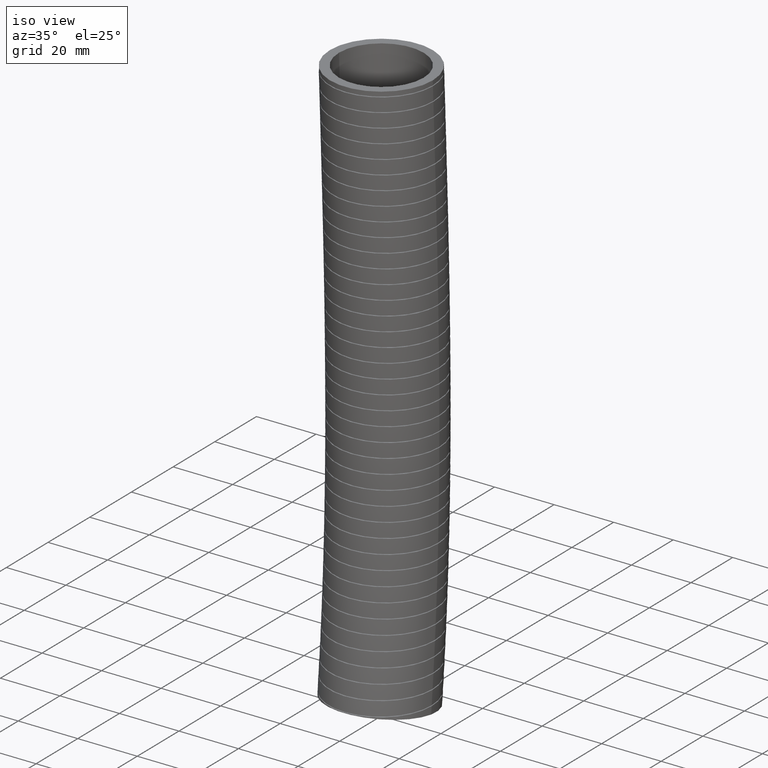
[diagram: clean part render]
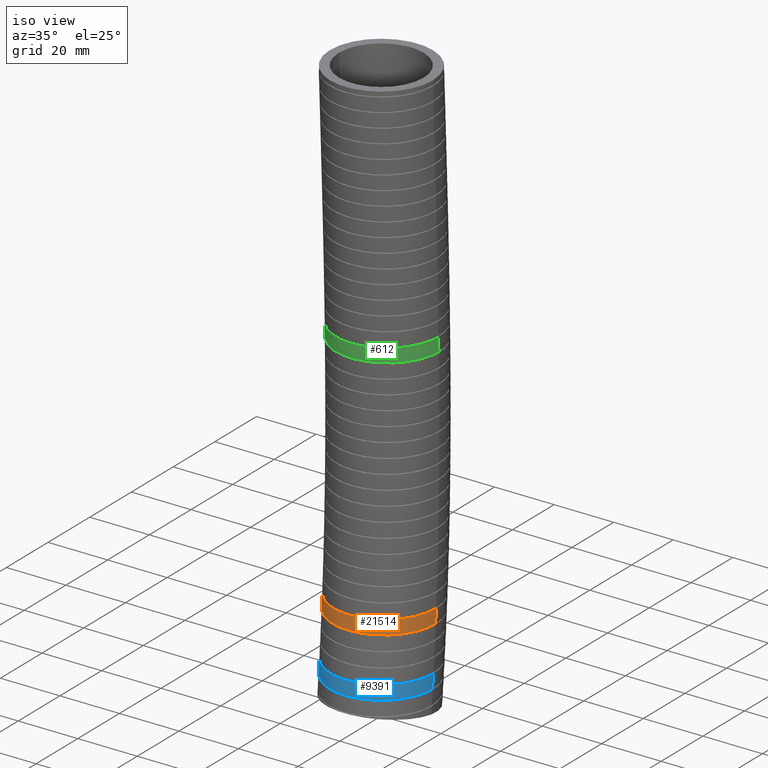
[diagram: same view with three faces highlighted in distinct colors, each labeled with its STEP entity id]
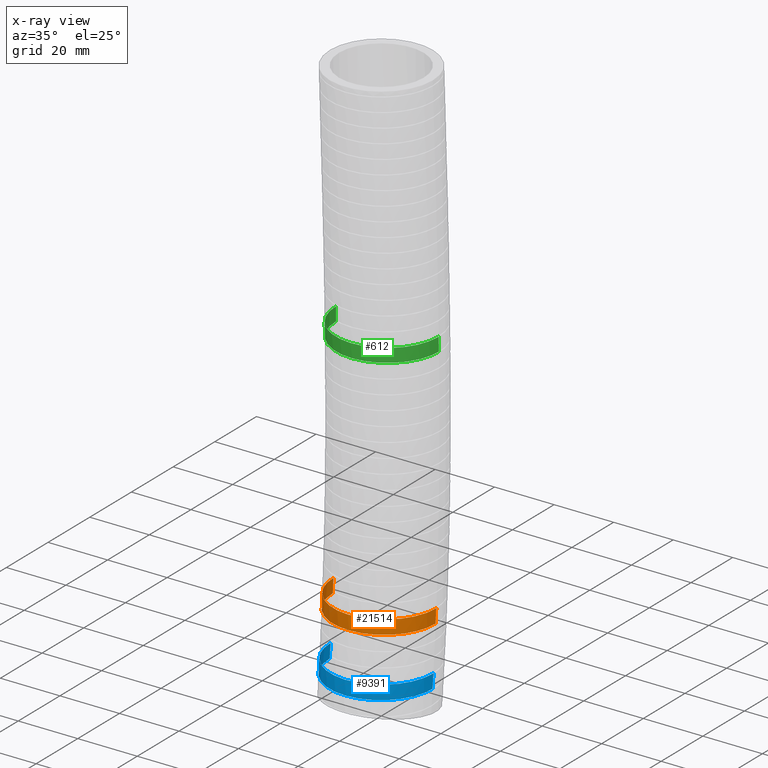
[diagram: x-ray of the same camera — body ghosted, the three highlighted faces saturated]
A machine part, iso view with three faces highlighted in distinct colors.
The next image is the same camera in x-ray (body ghosted, the three faces saturated) — at least one of them is partly hidden behind the body in this view.
Their STEP definitions:

[orange] entity #21514 — the highlighted face is a freeform B-spline surface patch.
#14010 = FACE_OUTER_BOUND ( 'NONE', #21511, .T. ) ;
#14035 = CARTESIAN_POINT ( 'NONE',  ( -0.6800000000000000500, -1.297703424955836600, -1.403800845789877400 ) ) ;
#14037 = CARTESIAN_POINT ( 'NONE',  ( -0.6800000000000000500, -1.360000000000000100, 0.0000000000000000000 ) ) ;
#14039 = CARTESIAN_POINT ( 'NONE',  ( 0.6799999999999998300, -1.377559051196987500, -7.386466342222807800 ) ) ;
#14040 = CARTESIAN_POINT ( 'NONE',  ( 0.6799999999999998300, -1.360997193634168900, -7.204345745797499300 ) ) ;
#14041 = CARTESIAN_POINT ( 'NONE',  ( 0.6800000000000000500, -1.264559801960247100, -6.143882858543539900 ) ) ;
#14042 = CARTESIAN_POINT ( 'NONE',  ( 0.6799999999999998300, -1.194865599480906100, -3.721164621865159700 ) ) ;
#14043 = CARTESIAN_POINT ( 'NONE',  ( 0.6800000000000000500, -1.297703424955836600, -1.403800845789877400 ) ) ;
#14044 = CARTESIAN_POINT ( 'NONE',  ( 0.6800000000000000500, -1.360000000000000100, 0.0000000000000000000 ) ) ;
#14045 = CARTESIAN_POINT ( 'NONE',  ( 0.6799999999999998300, -0.03000000000000002700, -7.570000000000000300 ) ) ;
#14046 = CARTESIAN_POINT ( 'NONE',  ( 0.6799999999999998300, -0.01268304244353373300, -7.380027536167250300 ) ) ;
#14048 = CARTESIAN_POINT ( 'NONE',  ( 0.6799999999999998300, 0.08815119140610085100, -6.273844317744462300 ) ) ;
#14049 = CARTESIAN_POINT ( 'NONE',  ( 0.6799999999999998300, 0.1669887239008314700, -3.753425867331408000 ) ) ;
#14050 = CARTESIAN_POINT ( 'NONE',  ( 0.6799999999999999400, 0.06299611430032937800, -1.415971326882179200 ) ) ;
#14051 = CARTESIAN_POINT ( 'NONE',  ( 0.6799999999999999400, 0.0000000000000000000, 0.0000000000000000000 ) ) ;
#14058 =( BOUNDED_SURFACE ( )  B_SPLINE_SURFACE ( 3, 3, ( 
 ( #14051, #14050, #14049, #14048, #14046, #14045 ),
 ( #14044, #14043, #14042, #14041, #14040, #14039 ),
 ( #14037, #14035, #14133, #14131, #14129, #14127 ),
 ( #14124, #14123, #14121, #14119, #14117, #14115 ),
 ( #14112, #14111, #14109, #14107, #14105, #14103 ),
 ( #14100, #14099, #14097, #14095, #14093, #14091 ),
 ( #14088, #14087, #14085, #14083, #14081, #14079 ) ),
 .UNSPECIFIED., .F., .F., .F. ) 
 B_SPLINE_SURFACE_WITH_KNOTS ( ( 4, 3, 4 ),
 ( 4, 1, 1, 4 ),
 ( 0.0000000000000000000, 0.5000000000000000000, 1.000000000000000000 ),
 ( 0.0000000000000000000, 0.5599999999999998300, 0.9244357691435686200, 1.000000000000000000 ),
 .UNSPECIFIED. ) 
 GEOMETRIC_REPRESENTATION_ITEM ( )  RATIONAL_B_SPLINE_SURFACE ( (
 ( 1.000000000000000000, 1.000000000000000000, 0.9999999999999998900, 1.000000000000000000, 1.000000000000000000, 1.000000000000000000),
 ( 0.3333333333333333100, 0.3333333333333333100, 0.3333333333333333100, 0.3333333333333333100, 0.3333333333333333100, 0.3333333333333333100),
 ( 0.3333333333333333100, 0.3333333333333333100, 0.3333333333333333100, 0.3333333333333333100, 0.3333333333333333100, 0.3333333333333333100),
 ( 1.000000000000000000, 1.000000000000000000, 0.9999999999999998900, 1.000000000000000000, 1.000000000000000000, 1.000000000000000000),
 ( 0.3333333333333333100, 0.3333333333333333100, 0.3333333333333333100, 0.3333333333333333100, 0.3333333333333333100, 0.3333333333333333100),
 ( 0.3333333333333333100, 0.3333333333333333100, 0.3333333333333333100, 0.3333333333333333100, 0.3333333333333333100, 0.3333333333333333100),
 ( 1.000000000000000000, 1.000000000000000000, 0.9999999999999998900, 1.000000000000000000, 1.000000000000000000, 1.000000000000000000) ) ) 
 REPRESENTATION_ITEM ( '' )  SURFACE ( )  );
#14079 = CARTESIAN_POINT ( 'NONE',  ( 0.6799999999999998300, -0.03000000000000002700, -7.570000000000000300 ) ) ;
#14081 = CARTESIAN_POINT ( 'NONE',  ( 0.6799999999999998300, -0.01268304244353373300, -7.380027536167250300 ) ) ;
#14083 = CARTESIAN_POINT ( 'NONE',  ( 0.6799999999999998300, 0.08815119140610085100, -6.273844317744462300 ) ) ;
#14085 = CARTESIAN_POINT ( 'NONE',  ( 0.6799999999999998300, 0.1669887239008314700, -3.753425867331408000 ) ) ;
#14087 = CARTESIAN_POINT ( 'NONE',  ( 0.6799999999999999400, 0.06299611430032937800, -1.415971326882179200 ) ) ;
#14088 = CARTESIAN_POINT ( 'NONE',  ( 0.6799999999999999400, 0.0000000000000000000, 0.0000000000000000000 ) ) ;
#14091 = CARTESIAN_POINT ( 'NONE',  ( 0.6799999999999998300, 1.317559051196987700, -7.753533657777190100 ) ) ;
#14093 = CARTESIAN_POINT ( 'NONE',  ( 0.6799999999999998300, 1.335631108747101300, -7.555709326537000300 ) ) ;
#14095 = CARTESIAN_POINT ( 'NONE',  ( 0.6800000000000000500, 1.440862184772448300, -6.403805776945382000 ) ) ;
#14097 = CARTESIAN_POINT ( 'NONE',  ( 0.6799999999999998300, 1.528843047282568500, -3.785687112797655500 ) ) ;
#14099 = CARTESIAN_POINT ( 'NONE',  ( 0.6800000000000000500, 1.423695653556495700, -1.428141807974481600 ) ) ;
#14100 = CARTESIAN_POINT ( 'NONE',  ( 0.6800000000000000500, 1.360000000000000100, 0.0000000000000000000 ) ) ;
#14103 = CARTESIAN_POINT ( 'NONE',  ( -0.6799999999999997200, 1.317559051196987700, -7.753533657777190100 ) ) ;
#14105 = CARTESIAN_POINT ( 'NONE',  ( -0.6799999999999998300, 1.335631108747101300, -7.555709326537000300 ) ) ;
#14107 = CARTESIAN_POINT ( 'NONE',  ( -0.6799999999999998300, 1.440862184772448300, -6.403805776945382000 ) ) ;
#14109 = CARTESIAN_POINT ( 'NONE',  ( -0.6799999999999993800, 1.528843047282568500, -3.785687112797655500 ) ) ;
#14111 = CARTESIAN_POINT ( 'NONE',  ( -0.6799999999999997200, 1.423695653556495700, -1.428141807974481600 ) ) ;
#14112 = CARTESIAN_POINT ( 'NONE',  ( -0.6799999999999998300, 1.360000000000000100, 0.0000000000000000000 ) ) ;
#14115 = CARTESIAN_POINT ( 'NONE',  ( -0.6799999999999998300, -0.02999999999999994300, -7.570000000000000300 ) ) ;
#14117 = CARTESIAN_POINT ( 'NONE',  ( -0.6799999999999998300, -0.01268304244353365600, -7.380027536167250300 ) ) ;
#14119 = CARTESIAN_POINT ( 'NONE',  ( -0.6799999999999998300, 0.08815119140610093400, -6.273844317744462300 ) ) ;
#14121 = CARTESIAN_POINT ( 'NONE',  ( -0.6799999999999998300, 0.1669887239008315800, -3.753425867331408000 ) ) ;
#14123 = CARTESIAN_POINT ( 'NONE',  ( -0.6799999999999999400, 0.06299611430032946200, -1.415971326882179200 ) ) ;
#14124 = CARTESIAN_POINT ( 'NONE',  ( -0.6799999999999999400, 8.327598234202001900E-017, 0.0000000000000000000 ) ) ;
#14127 = CARTESIAN_POINT ( 'NONE',  ( -0.6800000000000000500, -1.377559051196987500, -7.386466342222807800 ) ) ;
#14129 = CARTESIAN_POINT ( 'NONE',  ( -0.6800000000000000500, -1.360997193634168900, -7.204345745797499300 ) ) ;
#14131 = CARTESIAN_POINT ( 'NONE',  ( -0.6800000000000000500, -1.264559801960247100, -6.143882858543539900 ) ) ;
#14133 = CARTESIAN_POINT ( 'NONE',  ( -0.6799999999999998300, -1.194865599480906100, -3.721164621865159700 ) ) ;
#14535 = CARTESIAN_POINT ( 'NONE',  ( 0.3593828745027424800, -0.5118289622279645900, -6.336775358639008500 ) ) ;
#14537 = CARTESIAN_POINT ( 'NONE',  ( 0.4151414126405546500, -0.4745413704972155600, -6.336775358639009400 ) ) ;
#14539 = CARTESIAN_POINT ( 'NONE',  ( 0.4493812567447640300, -0.4463886494749667000, -6.336775358639008500 ) ) ;
#14540 = CARTESIAN_POINT ( 'NONE',  ( 0.4964451395685687800, -0.3993336611271129900, -6.336775358639007600 ) ) ;
#14542 = CARTESIAN_POINT ( 'NONE',  ( 0.5114119979964052400, -0.3828385933066594800, -6.336775358639008500 ) ) ;
#14544 = CARTESIAN_POINT ( 'NONE',  ( 0.5398570628225999300, -0.3481761366511001400, -6.336775358639008500 ) ) ;
#14546 = CARTESIAN_POINT ( 'NONE',  ( 0.5531985452877127300, -0.3301625117458039100, -6.336775358639007600 ) ) ;
#14548 = CARTESIAN_POINT ( 'NONE',  ( 0.5902140567528626500, -0.2747149377939773800, -6.336775358639006800 ) ) ;
#14550 = CARTESIAN_POINT ( 'NONE',  ( 0.6111038794638911100, -0.2356510695490511600, -6.336775358639008500 ) ) ;
#14552 = CARTESIAN_POINT ( 'NONE',  ( 0.6367066235519022200, -0.1738786572809524800, -6.336775358639006800 ) ) ;
#14554 = CARTESIAN_POINT ( 'NONE',  ( 0.6443053869368219300, -0.1526428477490695500, -6.336775358639006800 ) ) ;
#14556 = CARTESIAN_POINT ( 'NONE',  ( 0.6572512863579549300, -0.1099161719420679900, -6.336775358639007600 ) ) ;
#14558 = CARTESIAN_POINT ( 'NONE',  ( 0.6626349666413253700, -0.08836732612012925000, -6.336775358639004100 ) ) ;
#14560 = CARTESIAN_POINT ( 'NONE',  ( 0.6755910679375056700, -0.02317667480021342100, -6.336775358639002300 ) ) ;
#14562 = CARTESIAN_POINT ( 'NONE',  ( 0.6799999999999997200, 0.02100388836003023300, -6.336775358640154300 ) ) ;
#14564 = CARTESIAN_POINT ( 'NONE',  ( 0.6799999999999998300, 0.06593531424443289900, -6.336775358640157000 ) ) ;
#14568 = CARTESIAN_POINT ( 'NONE',  ( 0.6799999999999998300, 0.06593531424443289900, -6.336775358640157000 ) ) ;
#14572 = B_SPLINE_CURVE_WITH_KNOTS ( 'NONE', 3,
 ( #14564, #14562, #14560, #14558, #14556, #14554, #14552, #14550, #14548, #14546, #14544, #14542, #14540, #14539, #14537, #14535, #14676, #14674, #14672, #14670, #14668, #14666, #14664, #14662, #14660, #14658, #14656, #14654, #14652, #14650, #14648, #14646, #14644, #14642, #14640, #14638, #14636, #14634, #14632, #14630, #14628, #14626, #14624, #14622, #14621, #14619, #14617, #14615, #14614 ),
 .UNSPECIFIED., .F., .F.,
 ( 4, 2, 2, 2, 2, 2, 2, 2, 2, 1, 2, 2, 2, 2, 2, 2, 2, 2, 2, 2, 2, 2, 2, 2, 4 ),
 ( 0.0000000000000000000, 0.003375178080110538800, 0.005062767120165808000, 0.006750356160221077600, 0.01012553424033160900, 0.01181312328038687500, 0.01350071232044214000, 0.01687589040055266500, 0.01856347944060792600, 0.02025106848066318300, 0.02193865752071844400, 0.02362624656077370500, 0.02700142464088422700, 0.02868901368093949200, 0.03037660272099475300, 0.03375178080110527400, 0.03543936984116054200, 0.03712695888121580300, 0.04050213696132633200, 0.04387731504143686100, 0.04556490408149212900, 0.04725249312154739000, 0.05062767120165791900, 0.05231526024171318000, 0.05400284928176844100 ),
 .UNSPECIFIED. ) ;
#14575 = CARTESIAN_POINT ( 'NONE',  ( -0.6799999999999998300, 0.05497374082907955500, -6.516422371260217600 ) ) ;
#14598 = CARTESIAN_POINT ( 'NONE',  ( -0.6799999999999999400, 0.03269607072539288500, -6.516422371260216700 ) ) ;
#14599 = CARTESIAN_POINT ( 'NONE',  ( -0.6799999999999998300, 0.05497374082907955500, -6.516422371260217600 ) ) ;
#14600 = B_SPLINE_CURVE_WITH_KNOTS ( 'NONE', 3,
 ( #14599, #14598, #14737, #14736, #14735, #14733, #14732, #14730, #14729, #14728, #14726, #14725, #14724, #14722, #14721, #14720, #14719, #14717, #14716, #14715, #14713, #14712, #14711, #14710, #14709, #14708, #14707, #14705, #14704, #14703, #14702, #14701, #14700, #14699, #14698, #14697, #14696, #14695, #14694, #14693, #14692, #14691, #14690, #14689, #14688, #14686, #14685, #14684, #14683, #14682, #14680 ),
 .UNSPECIFIED., .F., .F.,
 ( 4, 2, 2, 2, 2, 2, 2, 2, 2, 2, 2, 2, 1, 2, 2, 2, 2, 2, 2, 2, 2, 2, 2, 2, 2, 4 ),
 ( 0.05458921518559874100, 0.05629531114721460200, 0.05800140710883046300, 0.06141359903206218600, 0.06482579095529390800, 0.06653188691690976900, 0.06823798287852563000, 0.07165017480175733800, 0.07335627076337319900, 0.07506236672498906000, 0.07847455864822076900, 0.08018065460983663000, 0.08188675057145249100, 0.08359284653306833800, 0.08529894249468419900, 0.08871113441791592100, 0.09041723037953176800, 0.09212332634114761600, 0.09553551826437933800, 0.09724161422599518500, 0.09894771018761103200, 0.1023599021108427300, 0.1040659980724585900, 0.1057720940340744300, 0.1074781899956902800, 0.1091842859573061300 ),
 .UNSPECIFIED. ) ;
#14613 = CARTESIAN_POINT ( 'NONE',  ( 0.6799999999999998300, 0.05497374082897333500, -6.516422371261044500 ) ) ;
#14614 = CARTESIAN_POINT ( 'NONE',  ( -0.6799999999999998300, 0.06593531424456661200, -6.336775358639005900 ) ) ;
#14615 = CARTESIAN_POINT ( 'NONE',  ( -0.6799999999999999400, 0.04374388814861809900, -6.336775358639012100 ) ) ;
#14617 = CARTESIAN_POINT ( 'NONE',  ( -0.6789166339267414000, 0.02148366318950129300, -6.336775358639009400 ) ) ;
#14619 = CARTESIAN_POINT ( 'NONE',  ( -0.6745096361374454100, -0.02317905417943273700, -6.336775358639011200 ) ) ;
#14621 = CARTESIAN_POINT ( 'NONE',  ( -0.6712084960826585300, -0.04530456287643606900, -6.336775358639009400 ) ) ;
#14622 = CARTESIAN_POINT ( 'NONE',  ( -0.6581744878885657000, -0.1106559440084088400, -6.336775358639009400 ) ) ;
#14624 = CARTESIAN_POINT ( 'NONE',  ( -0.6453223392621081400, -0.1530537100991528300, -6.336775358639009400 ) ) ;
#14626 = CARTESIAN_POINT ( 'NONE',  ( -0.6197230477916446700, -0.2148740300007926900, -6.336775358639012100 ) ) ;
#14628 = CARTESIAN_POINT ( 'NONE',  ( -0.6100748198283811900, -0.2352649877368947500, -6.336775358639007600 ) ) ;
#14630 = CARTESIAN_POINT ( 'NONE',  ( -0.5890262513716055800, -0.2746021988913565600, -6.336775358639006800 ) ) ;
#14632 = CARTESIAN_POINT ( 'NONE',  ( -0.5775989409399584500, -0.2936379241985073200, -6.336775358639007600 ) ) ;
#14634 = CARTESIAN_POINT ( 'NONE',  ( -0.5406639640363754000, -0.3488857296883358700, -6.336775358639007600 ) ) ;
#14636 = CARTESIAN_POINT ( 'NONE',  ( -0.5124713328632456400, -0.3833147893493522000, -6.336775358639008500 ) ) ;
#14638 = CARTESIAN_POINT ( 'NONE',  ( -0.4489779420395503300, -0.4467875907862386400, -6.336775358639011200 ) ) ;
#14640 = CARTESIAN_POINT ( 'NONE',  ( -0.4146317978365942100, -0.4748995765401431400, -6.336775358639006800 ) ) ;
#14642 = CARTESIAN_POINT ( 'NONE',  ( -0.3593600789743549000, -0.5118354357803429600, -6.336775358639005900 ) ) ;
#14644 = CARTESIAN_POINT ( 'NONE',  ( -0.3403061409360514400, -0.5232689347381855900, -6.336775358639008500 ) ) ;
#14646 = CARTESIAN_POINT ( 'NONE',  ( -0.3009072356493418000, -0.5443358488804331800, -6.336775358639007600 ) ) ;
#14648 = CARTESIAN_POINT ( 'NONE',  ( -0.2805254079929700400, -0.5539692372320881300, -6.336775358639007600 ) ) ;
#14650 = CARTESIAN_POINT ( 'NONE',  ( -0.2187758154602673100, -0.5795179106724976900, -6.336775358639008500 ) ) ;
#14652 = CARTESIAN_POINT ( 'NONE',  ( -0.1763837332138263300, -0.5923642875849820500, -6.336775358639006800 ) ) ;
#14654 = CARTESIAN_POINT ( 'NONE',  ( -0.1109673201930231300, -0.6053897214574993600, -6.336775358639006800 ) ) ;
#14656 = CARTESIAN_POINT ( 'NONE',  ( -0.08875412979165224500, -0.6086922338066957900, -6.336775358639005900 ) ) ;
#14658 = CARTESIAN_POINT ( 'NONE',  ( -0.04416892711263967900, -0.6130715050073327600, -6.336775358639004100 ) ) ;
#14660 = CARTESIAN_POINT ( 'NONE',  ( -0.02193497367745718800, -0.6141458999139258700, -6.336775358639003200 ) ) ;
#14662 = CARTESIAN_POINT ( 'NONE',  ( 0.04459614121694113100, -0.6141222127637451200, -6.336775358639005900 ) ) ;
#14664 = CARTESIAN_POINT ( 'NONE',  ( 0.08872418464411148400, -0.6098082048600967900, -6.336775358639012100 ) ) ;
#14666 = CARTESIAN_POINT ( 'NONE',  ( 0.1545679182976904000, -0.5967133680975751400, -6.336775358639011200 ) ) ;
#14668 = CARTESIAN_POINT ( 'NONE',  ( 0.1763869843950809900, -0.5912362498496126500, -6.336775358639015600 ) ) ;
#14670 = CARTESIAN_POINT ( 'NONE',  ( 0.2189590363785893200, -0.5783002900859362000, -6.336775358639013900 ) ) ;
#14672 = CARTESIAN_POINT ( 'NONE',  ( 0.2606992164601534800, -0.5633402858806159100, -6.336775358639001400 ) ) ;
#14674 = CARTESIAN_POINT ( 'NONE',  ( 0.3007980874613422900, -0.5443867791740638600, -6.336775358639011200 ) ) ;
#14676 = CARTESIAN_POINT ( 'NONE',  ( 0.3400637274246218800, -0.5234059210845045700, -6.336775358639009400 ) ) ;
#14680 = CARTESIAN_POINT ( 'NONE',  ( 0.6799999999999998300, 0.05497374082897333500, -6.516422371261044500 ) ) ;
#14682 = CARTESIAN_POINT ( 'NONE',  ( 0.6799999999999997200, 0.03250646232426177000, -6.516422371261044500 ) ) ;
#14683 = CARTESIAN_POINT ( 'NONE',  ( 0.6788800294502846900, 0.01002464322386516100, -6.516422371260218500 ) ) ;
#14684 = CARTESIAN_POINT ( 'NONE',  ( 0.6744824209561513000, -0.03434556442820003300, -6.516422371260220300 ) ) ;
#14685 = CARTESIAN_POINT ( 'NONE',  ( 0.6712087292476669500, -0.05629819574377235800, -6.516422371260216700 ) ) ;
#14686 = CARTESIAN_POINT ( 'NONE',  ( 0.6625524475493901300, -0.09974735399621856300, -6.516422371260216700 ) ) ;
#14688 = CARTESIAN_POINT ( 'NONE',  ( 0.6571698088387498700, -0.1212438703959354500, -6.516422371260215800 ) ) ;
#14689 = CARTESIAN_POINT ( 'NONE',  ( 0.6442752302523738800, -0.1637763861597323100, -6.516422371260216700 ) ) ;
#14690 = CARTESIAN_POINT ( 'NONE',  ( 0.6367358208113647100, -0.1848780842087861800, -6.516422371260212300 ) ) ;
#14691 = CARTESIAN_POINT ( 'NONE',  ( 0.6109807435423036900, -0.2470308596406400300, -6.516422371260214100 ) ) ;
#14692 = CARTESIAN_POINT ( 'NONE',  ( 0.5900213921577859300, -0.2861417007495069600, -6.516422371260217600 ) ) ;
#14693 = CARTESIAN_POINT ( 'NONE',  ( 0.5530930529798909800, -0.3414408386928818900, -6.516422371260217600 ) ) ;
#14694 = CARTESIAN_POINT ( 'NONE',  ( 0.5398620269728324800, -0.3593085911504507700, -6.516422371260217600 ) ) ;
#14695 = CARTESIAN_POINT ( 'NONE',  ( 0.5115082397052258500, -0.3938837126648079300, -6.516422371260220300 ) ) ;
#14696 = CARTESIAN_POINT ( 'NONE',  ( 0.4963777830496172200, -0.4105749750139413000, -6.516422371260216700 ) ) ;
#14697 = CARTESIAN_POINT ( 'NONE',  ( 0.4491420971775779100, -0.4577987725729306100, -6.516422371260214100 ) ) ;
#14698 = CARTESIAN_POINT ( 'NONE',  ( 0.4149028784990603800, -0.4859057394131939800, -6.516422371260214100 ) ) ;
#14699 = CARTESIAN_POINT ( 'NONE',  ( 0.3594292114521852000, -0.5230130388614984100, -6.516422371260213200 ) ) ;
#14700 = CARTESIAN_POINT ( 'NONE',  ( 0.3401432308424393000, -0.5345873233213860300, -6.516422371260212300 ) ) ;
#14701 = CARTESIAN_POINT ( 'NONE',  ( 0.3006636889340112400, -0.5556899375565511600, -6.516422371260213200 ) ) ;
#14702 = CARTESIAN_POINT ( 'NONE',  ( 0.2805458845845851300, -0.5651931581934971400, -6.516422371260212300 ) ) ;
#14703 = CARTESIAN_POINT ( 'NONE',  ( 0.2190898335563085700, -0.5906457887031173500, -6.516422371260214100 ) ) ;
#14704 = CARTESIAN_POINT ( 'NONE',  ( 0.1766595369665330800, -0.6035675222849745700, -6.516422371260218500 ) ) ;
#14705 = CARTESIAN_POINT ( 'NONE',  ( 0.1107564958457855800, -0.6166910034271735300, -6.516422371260217600 ) ) ;
#14707 = CARTESIAN_POINT ( 'NONE',  ( 0.08853408759446521100, -0.6199782640444800900, -6.516422371260213200 ) ) ;
#14708 = CARTESIAN_POINT ( 'NONE',  ( 0.04427343427639022400, -0.6243238806310160700, -6.516422371260213200 ) ) ;
#14709 = CARTESIAN_POINT ( 'NONE',  ( -6.430957754584827700E-006, -0.6264833661366462400, -6.516422371260222100 ) ) ;
#14710 = CARTESIAN_POINT ( 'NONE',  ( -0.04432426970281813600, -0.6243218317004836100, -6.516422371260216700 ) ) ;
#14711 = CARTESIAN_POINT ( 'NONE',  ( -0.08866142017921731200, -0.6199628081674589700, -6.516422371260215800 ) ) ;
#14712 = CARTESIAN_POINT ( 'NONE',  ( -0.1109614275518566000, -0.6166552545358096000, -6.516422371260222100 ) ) ;
#14713 = CARTESIAN_POINT ( 'NONE',  ( -0.1766953024326261800, -0.6035502289521999000, -6.516422371260218500 ) ) ;
#14715 = CARTESIAN_POINT ( 'NONE',  ( -0.2190964909419423300, -0.5906464150740669000, -6.516422371260222100 ) ) ;
#14716 = CARTESIAN_POINT ( 'NONE',  ( -0.2806089381947196000, -0.5651653493815856900, -6.516422371260221200 ) ) ;
#14717 = CARTESIAN_POINT ( 'NONE',  ( -0.3007623892300995100, -0.5556435126406668000, -6.516422371260209600 ) ) ;
#14719 = CARTESIAN_POINT ( 'NONE',  ( -0.3403440400654096900, -0.5344736062419358500, -6.516422371260209600 ) ) ;
#14720 = CARTESIAN_POINT ( 'NONE',  ( -0.3595180028761502700, -0.5229564630420678900, -6.516422371260213200 ) ) ;
#14721 = CARTESIAN_POINT ( 'NONE',  ( -0.4149043908986240200, -0.4858990774387768600, -6.516422371260213200 ) ) ;
#14722 = CARTESIAN_POINT ( 'NONE',  ( -0.4491555774133810800, -0.4577942538738737900, -6.516422371260213200 ) ) ;
#14724 = CARTESIAN_POINT ( 'NONE',  ( -0.4964736143648250100, -0.4104746741669065800, -6.516422371260215800 ) ) ;
#14725 = CARTESIAN_POINT ( 'NONE',  ( -0.5116193506537138900, -0.3937544624842186900, -6.516422371260212300 ) ) ;
#14726 = CARTESIAN_POINT ( 'NONE',  ( -0.5399043711208441100, -0.3592506814630128100, -6.516422371260214100 ) ) ;
#14728 = CARTESIAN_POINT ( 'NONE',  ( -0.5531170177854832800, -0.3414067036604743200, -6.516422371260221200 ) ) ;
#14729 = CARTESIAN_POINT ( 'NONE',  ( -0.5900232719503335500, -0.2861353791002187500, -6.516422371260217600 ) ) ;
#14730 = CARTESIAN_POINT ( 'NONE',  ( -0.6110439775103075900, -0.2469087011502260300, -6.516422371260214100 ) ) ;
#14732 = CARTESIAN_POINT ( 'NONE',  ( -0.6453930980520219400, -0.1639555738550206600, -6.516422371260213200 ) ) ;
#14733 = CARTESIAN_POINT ( 'NONE',  ( -0.6582274685433290300, -0.1214646179850903100, -6.516422371260216700 ) ) ;
#14735 = CARTESIAN_POINT ( 'NONE',  ( -0.6712146739197766300, -0.05626407578715222900, -6.516422371260217600 ) ) ;
#14736 = CARTESIAN_POINT ( 'NONE',  ( -0.6744919826390618500, -0.03428474369161097600, -6.516422371260206100 ) ) ;
#14737 = CARTESIAN_POINT ( 'NONE',  ( -0.6788916366250092900, 0.01017758008045285600, -6.516422371260207000 ) ) ;
#14778 = CARTESIAN_POINT ( 'NONE',  ( -0.6799999999999998300, 0.05497374082907955500, -6.516422371260217600 ) ) ;
#14780 = CARTESIAN_POINT ( 'NONE',  ( -0.6799999999999998300, 0.05880588885966413200, -6.456547583309610000 ) ) ;
#14782 = CARTESIAN_POINT ( 'NONE',  ( -0.6799999999999998300, 0.06245808817005598500, -6.396665175541266500 ) ) ;
#14783 = CARTESIAN_POINT ( 'NONE',  ( -0.6799999999999998300, 0.06593531424456661200, -6.336775358639005900 ) ) ;
#14789 = CARTESIAN_POINT ( 'NONE',  ( -0.6799999999999998300, 0.06593531424456661200, -6.336775358639005900 ) ) ;
#14792 = B_SPLINE_CURVE_WITH_KNOTS ( 'NONE', 3,
 ( #14783, #14782, #14780, #14778 ),
 .UNSPECIFIED., .F., .F.,
 ( 4, 4 ),
 ( 0.8365813253279658100, 0.8603700907279985300 ),
 .UNSPECIFIED. ) ;
#14796 = CARTESIAN_POINT ( 'NONE',  ( 0.6799999999999998300, 0.05497374082897333500, -6.516422371261044500 ) ) ;
#14798 = CARTESIAN_POINT ( 'NONE',  ( 0.6799999999999998300, 0.05880588885960556100, -6.456547583310552300 ) ) ;
#14800 = CARTESIAN_POINT ( 'NONE',  ( 0.6799999999999998300, 0.06245808816999279300, -6.396665175542315400 ) ) ;
#14801 = CARTESIAN_POINT ( 'NONE',  ( 0.6799999999999998300, 0.06593531424443289900, -6.336775358640157000 ) ) ;
#14802 = B_SPLINE_CURVE_WITH_KNOTS ( 'NONE', 3,
 ( #14801, #14800, #14798, #14796 ),
 .UNSPECIFIED., .F., .F.,
 ( 4, 4 ),
 ( 0.8365813253281189100, 0.8603700907281087700 ),
 .UNSPECIFIED. ) ;
#21507 = ORIENTED_EDGE ( 'NONE', *, *, #21531, .T. ) ;
#21511 = EDGE_LOOP ( 'NONE', ( #21507, #21537, #21536, #21539 ) ) ;
#21514 = ADVANCED_FACE ( 'NONE', ( #14010 ), #14058, .T. ) ;
#21531 = EDGE_CURVE ( 'NONE', #21534, #21542, #14572, .T. ) ;
#21532 = VERTEX_POINT ( 'NONE', #14575 ) ;
#21534 = VERTEX_POINT ( 'NONE', #14568 ) ;
#21535 = VERTEX_POINT ( 'NONE', #14613 ) ;
#21536 = ORIENTED_EDGE ( 'NONE', *, *, #21538, .T. ) ;
#21537 = ORIENTED_EDGE ( 'NONE', *, *, #21541, .T. ) ;
#21538 = EDGE_CURVE ( 'NONE', #21532, #21535, #14600, .T. ) ;
#21539 = ORIENTED_EDGE ( 'NONE', *, *, #21540, .F. ) ;
#21540 = EDGE_CURVE ( 'NONE', #21534, #21535, #14802, .T. ) ;
#21541 = EDGE_CURVE ( 'NONE', #21542, #21532, #14792, .T. ) ;
#21542 = VERTEX_POINT ( 'NONE', #14789 ) ;

[blue] entity #9391 — the highlighted face is a freeform B-spline surface patch.
#7140 = CARTESIAN_POINT ( 'NONE',  ( -0.6799999999999998300, 0.1669887239008315800, -3.753425867331408000 ) ) ;
#7141 = CARTESIAN_POINT ( 'NONE',  ( -0.6799999999999999400, 0.06299611430032946200, -1.415971326882179200 ) ) ;
#7142 = CARTESIAN_POINT ( 'NONE',  ( -0.6799999999999999400, 8.327598234202001900E-017, 0.0000000000000000000 ) ) ;
#7143 = CARTESIAN_POINT ( 'NONE',  ( -0.6800000000000000500, -1.377559051196987500, -7.386466342222807800 ) ) ;
#7144 = CARTESIAN_POINT ( 'NONE',  ( -0.6800000000000000500, -1.360997193634168900, -7.204345745797499300 ) ) ;
#7145 = CARTESIAN_POINT ( 'NONE',  ( -0.6800000000000000500, -1.264559801960247100, -6.143882858543539900 ) ) ;
#7146 = CARTESIAN_POINT ( 'NONE',  ( -0.6799999999999998300, -1.194865599480906100, -3.721164621865159700 ) ) ;
#7148 = CARTESIAN_POINT ( 'NONE',  ( -0.6800000000000000500, -1.297703424955836600, -1.403800845789877400 ) ) ;
#7149 = CARTESIAN_POINT ( 'NONE',  ( -0.6800000000000000500, -1.360000000000000100, 0.0000000000000000000 ) ) ;
#7244 = CARTESIAN_POINT ( 'NONE',  ( -0.6799999999999998300, 0.01217693932701256800, -7.094860042461001500 ) ) ;
#7256 = CARTESIAN_POINT ( 'NONE',  ( -0.6799999999999998300, -0.003306163625375735600, -7.274155360798787700 ) ) ;
#7257 = CARTESIAN_POINT ( 'NONE',  ( -0.6799999999999998300, 0.001975291069657932700, -7.214395353812920900 ) ) ;
#7258 = CARTESIAN_POINT ( 'NONE',  ( -0.6799999999999998300, 0.007156560935453294000, -7.154631104562156500 ) ) ;
#7259 = CARTESIAN_POINT ( 'NONE',  ( -0.6799999999999998300, 0.01217693932701256800, -7.094860042461001500 ) ) ;
#7261 = B_SPLINE_CURVE_WITH_KNOTS ( 'NONE', 3,
 ( #7259, #7258, #7257, #7256 ),
 .UNSPECIFIED., .F., .F.,
 ( 4, 4 ),
 ( 0.9370084684369832700, 0.9607760705588963600 ),
 .UNSPECIFIED. ) ;
#7276 = CARTESIAN_POINT ( 'NONE',  ( -0.5777829348519195600, -0.3479388425228549500, -7.094860042461008700 ) ) ;
#7277 = CARTESIAN_POINT ( 'NONE',  ( -0.5408915199934840600, -0.4033157013201627600, -7.094860042461007800 ) ) ;
#7278 = CARTESIAN_POINT ( 'NONE',  ( -0.5127307024944471900, -0.4378299119638449600, -7.094860042461009500 ) ) ;
#7279 = CARTESIAN_POINT ( 'NONE',  ( -0.4492702895761387900, -0.5014950026973846700, -7.094860042461008700 ) ) ;
#7280 = CARTESIAN_POINT ( 'NONE',  ( -0.4149311338773183400, -0.5297029528160819300, -7.094860042461005100 ) ) ;
#7281 = CARTESIAN_POINT ( 'NONE',  ( -0.3596510354237662500, -0.5667753466507282600, -7.094860042461004200 ) ) ;
#7282 = CARTESIAN_POINT ( 'NONE',  ( -0.3405911474774915800, -0.5782531268840899200, -7.094860042461000700 ) ) ;
#7283 = CARTESIAN_POINT ( 'NONE',  ( -0.3011729329048648000, -0.5994047754163950300, -7.094860042460999800 ) ) ;
#7284 = CARTESIAN_POINT ( 'NONE',  ( -0.2807810855057975000, -0.6090769092265231300, -7.094860042461009500 ) ) ;
#7285 = CARTESIAN_POINT ( 'NONE',  ( -0.2189935884996894700, -0.6347314107025904300, -7.094860042461008700 ) ) ;
#7286 = CARTESIAN_POINT ( 'NONE',  ( -0.1765631060541419100, -0.6476363026268232600, -7.094860042461000700 ) ) ;
#7287 = CARTESIAN_POINT ( 'NONE',  ( -0.1110667810439056600, -0.6607223176297473100, -7.094860042461000700 ) ) ;
#7288 = CARTESIAN_POINT ( 'NONE',  ( -0.08881686189875164000, -0.6640408359881525600, -7.094860042461004200 ) ) ;
#7289 = CARTESIAN_POINT ( 'NONE',  ( -0.04419162795891976700, -0.6684375730822019700, -7.094860042461004200 ) ) ;
#7290 = CARTESIAN_POINT ( 'NONE',  ( -0.02193567730680254900, -0.6695161571702762400, -7.094860042461003300 ) ) ;
#7291 = CARTESIAN_POINT ( 'NONE',  ( 0.04466711236374056700, -0.6694901096636949300, -7.094860042461003300 ) ) ;
#7292 = CARTESIAN_POINT ( 'NONE',  ( 0.08885046945712861400, -0.6651549078451696200, -7.094860042461006000 ) ) ;
#7293 = CARTESIAN_POINT ( 'NONE',  ( 0.1547883676836253900, -0.6519899246382228100, -7.094860042461005100 ) ) ;
#7294 = CARTESIAN_POINT ( 'NONE',  ( 0.1766149550907012400, -0.6464890796293448800, -7.094860042461003300 ) ) ;
#7295 = CARTESIAN_POINT ( 'NONE',  ( 0.2192121435539803600, -0.6334967488464893200, -7.094860042461003300 ) ) ;
#7296 = CARTESIAN_POINT ( 'NONE',  ( 0.2609774342287176600, -0.6184723540496143100, -7.094860042461001500 ) ) ;
#7297 = CARTESIAN_POINT ( 'NONE',  ( 0.3011009520676948800, -0.5994376258384049900, -7.094860042461001500 ) ) ;
#7298 = CARTESIAN_POINT ( 'NONE',  ( 0.3403907536506293200, -0.5783663916703955000, -7.094860042461003300 ) ) ;
#7299 = CARTESIAN_POINT ( 'NONE',  ( 0.3597222373362501400, -0.5667382348014701200, -7.094860042460995300 ) ) ;
#7300 = CARTESIAN_POINT ( 'NONE',  ( 0.4154615855321038300, -0.5293257468731454900, -7.094860042460998900 ) ) ;
#7301 = CARTESIAN_POINT ( 'NONE',  ( 0.4496864247597298100, -0.5010833783086199300, -7.094860042461006000 ) ) ;
#7302 = CARTESIAN_POINT ( 'NONE',  ( 0.4967246441740991700, -0.4538846616164859400, -7.094860042461006000 ) ) ;
#7303 = CARTESIAN_POINT ( 'NONE',  ( 0.5116824170969974700, -0.4373401290593017000, -7.094860042461001500 ) ) ;
#7304 = CARTESIAN_POINT ( 'NONE',  ( 0.5401082112056904100, -0.4025755283142466400, -7.094860042461004200 ) ) ;
#7305 = CARTESIAN_POINT ( 'NONE',  ( 0.5534241575298793900, -0.3845304225803990400, -7.094860042461005100 ) ) ;
#7306 = CARTESIAN_POINT ( 'NONE',  ( 0.5903850463544885200, -0.3289668833452354400, -7.094860042461004200 ) ) ;
#7307 = CARTESIAN_POINT ( 'NONE',  ( 0.6112413692151816800, -0.2898272006428933000, -7.094860042461009500 ) ) ;
#7308 = CARTESIAN_POINT ( 'NONE',  ( 0.6367997573753830800, -0.2279441516248534300, -7.094860042461005100 ) ) ;
#7309 = CARTESIAN_POINT ( 'NONE',  ( 0.6443835641327129200, -0.2066744007433290700, -7.094860042461004200 ) ) ;
#7310 = CARTESIAN_POINT ( 'NONE',  ( 0.6573013689122676500, -0.1638905595414631200, -7.094860042461003300 ) ) ;
#7311 = CARTESIAN_POINT ( 'NONE',  ( 0.6626733287352601900, -0.1423136038140359900, -7.094860042460998900 ) ) ;
#7312 = CARTESIAN_POINT ( 'NONE',  ( 0.6756010618340782000, -0.07704000412231853900, -7.094860042460998900 ) ) ;
#7313 = CARTESIAN_POINT ( 'NONE',  ( 0.6799999999999999400, -0.03280595790538686600, -7.094860042268884100 ) ) ;
#7314 = CARTESIAN_POINT ( 'NONE',  ( 0.6799999999999998300, 0.01217693935928572600, -7.094860042268884100 ) ) ;
#7315 = B_SPLINE_CURVE_WITH_KNOTS ( 'NONE', 3,
 ( #7314, #7313, #7312, #7311, #7310, #7309, #7308, #7307, #7306, #7305, #7304, #7303, #7302, #7301, #7300, #7299, #7298, #7297, #7296, #7295, #7294, #7293, #7292, #7291, #7290, #7289, #7288, #7287, #7286, #7285, #7284, #7283, #7282, #7281, #7280, #7279, #7278, #7277, #7276, #7348, #7347, #7346, #7345, #7344, #7343, #7342, #7341, #7340, #7339 ),
 .UNSPECIFIED., .F., .F.,
 ( 4, 2, 2, 2, 2, 2, 2, 2, 2, 1, 2, 2, 2, 2, 2, 2, 2, 2, 2, 2, 2, 2, 2, 2, 4 ),
 ( 0.0000000000000000000, 0.003379083890527625800, 0.005068625835791438900, 0.006758167781055251500, 0.01013725167158287900, 0.01182679361684669200, 0.01351633556211050100, 0.01689541945263812000, 0.01858496139790193100, 0.02027450334316574200, 0.02196404528842954600, 0.02365358723369335300, 0.02703267112422097100, 0.02872221306948477900, 0.03041175501474858300, 0.03379083890527619800, 0.03548038085054000500, 0.03716992279580381300, 0.04054900668633142800, 0.04392809057685903600, 0.04561763252212285000, 0.04730717446738665100, 0.05068625835791427900, 0.05237580030317808700, 0.05406534224844189400 ),
 .UNSPECIFIED. ) ;
#7339 = CARTESIAN_POINT ( 'NONE',  ( -0.6799999999999998300, 0.01217693932701256800, -7.094860042461001500 ) ) ;
#7340 = CARTESIAN_POINT ( 'NONE',  ( -0.6799999999999998300, -0.01003995125328614000, -7.094860042461006000 ) ) ;
#7341 = CARTESIAN_POINT ( 'NONE',  ( -0.6789191014962815400, -0.03232529662405905100, -7.094860042461005100 ) ) ;
#7342 = CARTESIAN_POINT ( 'NONE',  ( -0.6745225862454095100, -0.07703751514883248900, -7.094860042461003300 ) ) ;
#7343 = CARTESIAN_POINT ( 'NONE',  ( -0.6712283857941562200, -0.09919465075586340900, -7.094860042461006000 ) ) ;
#7344 = CARTESIAN_POINT ( 'NONE',  ( -0.6582216062565325900, -0.1646354406007841100, -7.094860042461008700 ) ) ;
#7345 = CARTESIAN_POINT ( 'NONE',  ( -0.6453951982921217700, -0.2070959651998068600, -7.094860042461005100 ) ) ;
#7346 = CARTESIAN_POINT ( 'NONE',  ( -0.6198446110172762800, -0.2690148088317362900, -7.094860042461003300 ) ) ;
#7347 = CARTESIAN_POINT ( 'NONE',  ( -0.6102134813060597900, -0.2894420230736405300, -7.094860042461004200 ) ) ;
#7348 = CARTESIAN_POINT ( 'NONE',  ( -0.5891952085363348900, -0.3288610094779740300, -7.094860042461001500 ) ) ;
#7365 = FACE_OUTER_BOUND ( 'NONE', #9379, .T. ) ;
#7371 = CARTESIAN_POINT ( 'NONE',  ( 0.6799999999999998300, 0.01217693935928572600, -7.094860042268884100 ) ) ;
#7375 = CARTESIAN_POINT ( 'NONE',  ( 0.6799999999999998300, -1.377559051196987500, -7.386466342222807800 ) ) ;
#7376 = CARTESIAN_POINT ( 'NONE',  ( 0.6799999999999998300, -1.360997193634168900, -7.204345745797499300 ) ) ;
#7377 = CARTESIAN_POINT ( 'NONE',  ( 0.6800000000000000500, -1.264559801960247100, -6.143882858543539900 ) ) ;
#7378 = CARTESIAN_POINT ( 'NONE',  ( 0.6799999999999998300, -1.194865599480906100, -3.721164621865159700 ) ) ;
#7379 = CARTESIAN_POINT ( 'NONE',  ( 0.6800000000000000500, -1.297703424955836600, -1.403800845789877400 ) ) ;
#7380 = CARTESIAN_POINT ( 'NONE',  ( 0.6800000000000000500, -1.360000000000000100, 0.0000000000000000000 ) ) ;
#7381 = CARTESIAN_POINT ( 'NONE',  ( 0.6799999999999998300, -0.03000000000000002700, -7.570000000000000300 ) ) ;
#7382 = CARTESIAN_POINT ( 'NONE',  ( 0.6799999999999998300, -0.01268304244353373300, -7.380027536167250300 ) ) ;
#7383 = CARTESIAN_POINT ( 'NONE',  ( 0.6799999999999998300, 0.08815119140610085100, -6.273844317744462300 ) ) ;
#7384 = CARTESIAN_POINT ( 'NONE',  ( 0.6799999999999998300, 0.1669887239008314700, -3.753425867331408000 ) ) ;
#7385 = CARTESIAN_POINT ( 'NONE',  ( 0.6799999999999999400, 0.06299611430032937800, -1.415971326882179200 ) ) ;
#7386 = CARTESIAN_POINT ( 'NONE',  ( 0.6799999999999999400, 0.0000000000000000000, 0.0000000000000000000 ) ) ;
#7394 =( BOUNDED_SURFACE ( )  B_SPLINE_SURFACE ( 3, 3, ( 
 ( #7386, #7385, #7384, #7383, #7382, #7381 ),
 ( #7380, #7379, #7378, #7377, #7376, #7375 ),
 ( #7149, #7148, #7146, #7145, #7144, #7143 ),
 ( #7142, #7141, #7140, #7419, #7418, #7417 ),
 ( #7416, #7415, #7414, #7413, #7412, #7411 ),
 ( #7410, #7409, #7408, #7407, #7406, #7405 ),
 ( #7404, #7403, #7402, #7401, #7400, #7399 ) ),
 .UNSPECIFIED., .F., .F., .F. ) 
 B_SPLINE_SURFACE_WITH_KNOTS ( ( 4, 3, 4 ),
 ( 4, 1, 1, 4 ),
 ( 0.0000000000000000000, 0.5000000000000000000, 1.000000000000000000 ),
 ( 0.0000000000000000000, 0.5599999999999998300, 0.9244357691435686200, 1.000000000000000000 ),
 .UNSPECIFIED. ) 
 GEOMETRIC_REPRESENTATION_ITEM ( )  RATIONAL_B_SPLINE_SURFACE ( (
 ( 1.000000000000000000, 1.000000000000000000, 0.9999999999999998900, 1.000000000000000000, 1.000000000000000000, 1.000000000000000000),
 ( 0.3333333333333333100, 0.3333333333333333100, 0.3333333333333333100, 0.3333333333333333100, 0.3333333333333333100, 0.3333333333333333100),
 ( 0.3333333333333333100, 0.3333333333333333100, 0.3333333333333333100, 0.3333333333333333100, 0.3333333333333333100, 0.3333333333333333100),
 ( 1.000000000000000000, 1.000000000000000000, 0.9999999999999998900, 1.000000000000000000, 1.000000000000000000, 1.000000000000000000),
 ( 0.3333333333333333100, 0.3333333333333333100, 0.3333333333333333100, 0.3333333333333333100, 0.3333333333333333100, 0.3333333333333333100),
 ( 0.3333333333333333100, 0.3333333333333333100, 0.3333333333333333100, 0.3333333333333333100, 0.3333333333333333100, 0.3333333333333333100),
 ( 1.000000000000000000, 1.000000000000000000, 0.9999999999999998900, 1.000000000000000000, 1.000000000000000000, 1.000000000000000000) ) ) 
 REPRESENTATION_ITEM ( '' )  SURFACE ( )  );
#7399 = CARTESIAN_POINT ( 'NONE',  ( 0.6799999999999998300, -0.03000000000000002700, -7.570000000000000300 ) ) ;
#7400 = CARTESIAN_POINT ( 'NONE',  ( 0.6799999999999998300, -0.01268304244353373300, -7.380027536167250300 ) ) ;
#7401 = CARTESIAN_POINT ( 'NONE',  ( 0.6799999999999998300, 0.08815119140610085100, -6.273844317744462300 ) ) ;
#7402 = CARTESIAN_POINT ( 'NONE',  ( 0.6799999999999998300, 0.1669887239008314700, -3.753425867331408000 ) ) ;
#7403 = CARTESIAN_POINT ( 'NONE',  ( 0.6799999999999999400, 0.06299611430032937800, -1.415971326882179200 ) ) ;
#7404 = CARTESIAN_POINT ( 'NONE',  ( 0.6799999999999999400, 0.0000000000000000000, 0.0000000000000000000 ) ) ;
#7405 = CARTESIAN_POINT ( 'NONE',  ( 0.6799999999999998300, 1.317559051196987700, -7.753533657777190100 ) ) ;
#7406 = CARTESIAN_POINT ( 'NONE',  ( 0.6799999999999998300, 1.335631108747101300, -7.555709326537000300 ) ) ;
#7407 = CARTESIAN_POINT ( 'NONE',  ( 0.6800000000000000500, 1.440862184772448300, -6.403805776945382000 ) ) ;
#7408 = CARTESIAN_POINT ( 'NONE',  ( 0.6799999999999998300, 1.528843047282568500, -3.785687112797655500 ) ) ;
#7409 = CARTESIAN_POINT ( 'NONE',  ( 0.6800000000000000500, 1.423695653556495700, -1.428141807974481600 ) ) ;
#7410 = CARTESIAN_POINT ( 'NONE',  ( 0.6800000000000000500, 1.360000000000000100, 0.0000000000000000000 ) ) ;
#7411 = CARTESIAN_POINT ( 'NONE',  ( -0.6799999999999997200, 1.317559051196987700, -7.753533657777190100 ) ) ;
#7412 = CARTESIAN_POINT ( 'NONE',  ( -0.6799999999999998300, 1.335631108747101300, -7.555709326537000300 ) ) ;
#7413 = CARTESIAN_POINT ( 'NONE',  ( -0.6799999999999998300, 1.440862184772448300, -6.403805776945382000 ) ) ;
#7414 = CARTESIAN_POINT ( 'NONE',  ( -0.6799999999999993800, 1.528843047282568500, -3.785687112797655500 ) ) ;
#7415 = CARTESIAN_POINT ( 'NONE',  ( -0.6799999999999997200, 1.423695653556495700, -1.428141807974481600 ) ) ;
#7416 = CARTESIAN_POINT ( 'NONE',  ( -0.6799999999999998300, 1.360000000000000100, 0.0000000000000000000 ) ) ;
#7417 = CARTESIAN_POINT ( 'NONE',  ( -0.6799999999999998300, -0.02999999999999994300, -7.570000000000000300 ) ) ;
#7418 = CARTESIAN_POINT ( 'NONE',  ( -0.6799999999999998300, -0.01268304244353365600, -7.380027536167250300 ) ) ;
#7419 = CARTESIAN_POINT ( 'NONE',  ( -0.6799999999999998300, 0.08815119140610093400, -6.273844317744462300 ) ) ;
#7648 = B_SPLINE_CURVE_WITH_KNOTS ( 'NONE', 3,
 ( #7714, #7713, #7712, #7711 ),
 .UNSPECIFIED., .F., .F.,
 ( 4, 4 ),
 ( 0.9370084684113400000, 0.9607760705588991300 ),
 .UNSPECIFIED. ) ;
#7650 = CARTESIAN_POINT ( 'NONE',  ( 0.6799999999999998300, -0.003306163625379888500, -7.274155360798809000 ) ) ;
#7674 = CARTESIAN_POINT ( 'NONE',  ( 0.2808049843312125400, -0.6248243764404242100, -7.274155360798785000 ) ) ;
#7675 = CARTESIAN_POINT ( 'NONE',  ( 0.2193069116433442600, -0.6503829705534467400, -7.274155360798785900 ) ) ;
#7676 = CARTESIAN_POINT ( 'NONE',  ( 0.1768349029252975200, -0.6633636273545781000, -7.274155360798782300 ) ) ;
#7677 = CARTESIAN_POINT ( 'NONE',  ( 0.1108446014768348100, -0.6765477103865222800, -7.274155360798782300 ) ) ;
#7678 = CARTESIAN_POINT ( 'NONE',  ( 0.08860697450084012400, -0.6798474755848892300, -7.274155360798789400 ) ) ;
#7679 = CARTESIAN_POINT ( 'NONE',  ( 0.04430156458783544200, -0.6842111398905236200, -7.274155360798789400 ) ) ;
#7680 = CARTESIAN_POINT ( 'NONE',  ( 0.02213697768548275300, -0.6852953026039901900, -7.274155360798788500 ) ) ;
#7681 = CARTESIAN_POINT ( 'NONE',  ( -0.02221569547024524600, -0.6852927277609325300, -7.274155360798789400 ) ) ;
#7682 = CARTESIAN_POINT ( 'NONE',  ( -0.04440378135654089000, -0.6842060241154691600, -7.274155360798782300 ) ) ;
#7683 = CARTESIAN_POINT ( 'NONE',  ( -0.08880387051338824200, -0.6798230981066307700, -7.274155360798783200 ) ) ;
#7684 = CARTESIAN_POINT ( 'NONE',  ( -0.1111353157956243100, -0.6764971581038642400, -7.274155360798788500 ) ) ;
#7685 = CARTESIAN_POINT ( 'NONE',  ( -0.1769155376044522500, -0.6633323452489216000, -7.274155360798787700 ) ) ;
#7686 = CARTESIAN_POINT ( 'NONE',  ( -0.2193490467613460600, -0.6503719396093283800, -7.274155360798789400 ) ) ;
#7687 = CARTESIAN_POINT ( 'NONE',  ( -0.2809106485610872200, -0.6247772121755771300, -7.274155360798792100 ) ) ;
#7688 = CARTESIAN_POINT ( 'NONE',  ( -0.3010805961889698700, -0.6152126545316860500, -7.274155360798785000 ) ) ;
#7689 = CARTESIAN_POINT ( 'NONE',  ( -0.3406951599093780400, -0.5939463927347752300, -7.274155360798785000 ) ) ;
#7690 = CARTESIAN_POINT ( 'NONE',  ( -0.3598503672948894500, -0.5823971156157629100, -7.274155360798785900 ) ) ;
#7691 = CARTESIAN_POINT ( 'NONE',  ( -0.4152263900426675900, -0.5452120107626816600, -7.274155360798788500 ) ) ;
#7692 = CARTESIAN_POINT ( 'NONE',  ( -0.4494682897039380400, -0.5170137142493865800, -7.274155360798792100 ) ) ;
#7693 = CARTESIAN_POINT ( 'NONE',  ( -0.4967682848173949300, -0.4695406412941913700, -7.274155360798792100 ) ) ;
#7694 = CARTESIAN_POINT ( 'NONE',  ( -0.5119010065509145300, -0.4527730839063952600, -7.274155360798790300 ) ) ;
#7695 = CARTESIAN_POINT ( 'NONE',  ( -0.5401502396357627000, -0.4181880926490348400, -7.274155360798792100 ) ) ;
#7696 = CARTESIAN_POINT ( 'NONE',  ( -0.5533453205715057600, -0.4003036302950644400, -7.274155360798792100 ) ) ;
#7697 = CARTESIAN_POINT ( 'NONE',  ( -0.5779152085047588600, -0.3633754798462186500, -7.274155360798792100 ) ) ;
#7698 = CARTESIAN_POINT ( 'NONE',  ( -0.5892899568069790400, -0.3443317543717615000, -7.274155360798784100 ) ) ;
#7699 = CARTESIAN_POINT ( 'NONE',  ( -0.6102050127859903700, -0.3050760557495126300, -7.274155360798783200 ) ) ;
#7700 = CARTESIAN_POINT ( 'NONE',  ( -0.6197632199281520900, -0.2848208460154166800, -7.274155360798785900 ) ) ;
#7701 = CARTESIAN_POINT ( 'NONE',  ( -0.6454709393062753000, -0.2225125053519034200, -7.274155360798785000 ) ) ;
#7702 = CARTESIAN_POINT ( 'NONE',  ( -0.6582772629517101800, -0.1799621449609248000, -7.274155360798782300 ) ) ;
#7703 = CARTESIAN_POINT ( 'NONE',  ( -0.6712352216687029700, -0.1146770053454569300, -7.274155360798782300 ) ) ;
#7704 = CARTESIAN_POINT ( 'NONE',  ( -0.6745049461120148400, -0.09267023391818432500, -7.274155360798785000 ) ) ;
#7705 = CARTESIAN_POINT ( 'NONE',  ( -0.6788942744585283500, -0.04815468347773099000, -7.274155360798788500 ) ) ;
#7706 = CARTESIAN_POINT ( 'NONE',  ( -0.6799999999999998300, -0.02561034618812506300, -7.274155360798787700 ) ) ;
#7707 = CARTESIAN_POINT ( 'NONE',  ( -0.6799999999999998300, -0.003306163625375735600, -7.274155360798787700 ) ) ;
#7708 = B_SPLINE_CURVE_WITH_KNOTS ( 'NONE', 3,
 ( #7707, #7706, #7705, #7704, #7703, #7702, #7701, #7700, #7699, #7698, #7697, #7696, #7695, #7694, #7693, #7692, #7691, #7690, #7689, #7688, #7687, #7686, #7685, #7684, #7683, #7682, #7681, #7680, #7679, #7678, #7677, #7676, #7675, #7674, #7748, #7747, #7746, #7745, #7744, #7743, #7742, #7741, #7740, #7739, #7738, #7737, #7736, #7735, #7734, #7733, #7732, #7731, #7730, #7729 ),
 .UNSPECIFIED., .F., .F.,
 ( 4, 2, 2, 2, 2, 2, 2, 2, 2, 2, 2, 2, 2, 2, 2, 2, 2, 2, 2, 2, 2, 2, 2, 2, 2, 2, 4 ),
 ( 0.05465116706967571000, 0.05635923222651140900, 0.05806729738334710800, 0.06148342769701850600, 0.06319149285385421100, 0.06489955801068990300, 0.06660762316752560900, 0.06831568832436131500, 0.07173181863803271300, 0.07343988379486840500, 0.07514794895170411000, 0.07856407926537550800, 0.08027214442221121400, 0.08198020957904690600, 0.08368827473588261200, 0.08539633989271830400, 0.08881247020638970100, 0.09052053536322540700, 0.09222860052006109900, 0.09564473083373249700, 0.09735279599056820300, 0.09906086114740389500, 0.1024769914610752900, 0.1041850566179109800, 0.1058931217747466800, 0.1076011869315823700, 0.1093092520884180600 ),
 .UNSPECIFIED. ) ;
#7710 = CARTESIAN_POINT ( 'NONE',  ( -0.6799999999999998300, -0.003306163625375735600, -7.274155360798787700 ) ) ;
#7711 = CARTESIAN_POINT ( 'NONE',  ( 0.6799999999999998300, -0.003306163625379888500, -7.274155360798809000 ) ) ;
#7712 = CARTESIAN_POINT ( 'NONE',  ( 0.6799999999999998300, 0.001975291075354883000, -7.214395353748459500 ) ) ;
#7713 = CARTESIAN_POINT ( 'NONE',  ( 0.6799999999999998300, 0.007156560946632932800, -7.154631104433204500 ) ) ;
#7714 = CARTESIAN_POINT ( 'NONE',  ( 0.6799999999999998300, 0.01217693935928572600, -7.094860042268884100 ) ) ;
#7729 = CARTESIAN_POINT ( 'NONE',  ( 0.6799999999999998300, -0.003306163625379888500, -7.274155360798809000 ) ) ;
#7730 = CARTESIAN_POINT ( 'NONE',  ( 0.6800000000000001600, -0.02579928390250140300, -7.274155360798811600 ) ) ;
#7731 = CARTESIAN_POINT ( 'NONE',  ( 0.6788827482079169400, -0.04830768447188791400, -7.274155360798788500 ) ) ;
#7732 = CARTESIAN_POINT ( 'NONE',  ( 0.6744951016420829300, -0.09273379339300494300, -7.274155360798787700 ) ) ;
#7733 = CARTESIAN_POINT ( 'NONE',  ( 0.6712286889404455200, -0.1147150280302037900, -7.274155360798793000 ) ) ;
#7734 = CARTESIAN_POINT ( 'NONE',  ( 0.6625911656426944900, -0.1582226068445574100, -7.274155360798790300 ) ) ;
#7735 = CARTESIAN_POINT ( 'NONE',  ( 0.6572200077049201700, -0.1797489407897119000, -7.274155360798793900 ) ) ;
#7736 = CARTESIAN_POINT ( 'NONE',  ( 0.6443524484472966700, -0.2223422777031993400, -7.274155360798793000 ) ) ;
#7737 = CARTESIAN_POINT ( 'NONE',  ( 0.6368304702321641000, -0.2434708182269190700, -7.274155360798785000 ) ) ;
#7738 = CARTESIAN_POINT ( 'NONE',  ( 0.6111200367388801600, -0.3057368531188521300, -7.274155360798784100 ) ) ;
#7739 = CARTESIAN_POINT ( 'NONE',  ( 0.5901923313746796400, -0.3449287792678221700, -7.274155360798788500 ) ) ;
#7740 = CARTESIAN_POINT ( 'NONE',  ( 0.5533094520304835400, -0.4003547257617597900, -7.274155360798785000 ) ) ;
#7741 = CARTESIAN_POINT ( 'NONE',  ( 0.5400932604655032100, -0.4182656288671604500, -7.274155360798785000 ) ) ;
#7742 = CARTESIAN_POINT ( 'NONE',  ( 0.5117677436792359400, -0.4529284049308330300, -7.274155360798785900 ) ) ;
#7743 = CARTESIAN_POINT ( 'NONE',  ( 0.4966478124583339500, -0.4696675263658370300, -7.274155360798783200 ) ) ;
#7744 = CARTESIAN_POINT ( 'NONE',  ( 0.4494357517684849400, -0.5170343754289039600, -7.274155360798784100 ) ) ;
#7745 = CARTESIAN_POINT ( 'NONE',  ( 0.4152031681790117600, -0.5452365645757469800, -7.274155360798785000 ) ) ;
#7746 = CARTESIAN_POINT ( 'NONE',  ( 0.3597204169648984300, -0.5824798801973054600, -7.274155360798785000 ) ) ;
#7747 = CARTESIAN_POINT ( 'NONE',  ( 0.3404273691270324800, -0.5940989215458691900, -7.274155360798784100 ) ) ;
#7748 = CARTESIAN_POINT ( 'NONE',  ( 0.3009333330696579200, -0.6152828461796393500, -7.274155360798785000 ) ) ;
#9368 = EDGE_CURVE ( 'NONE', #9380, #9428, #7261, .T. ) ;
#9378 = ORIENTED_EDGE ( 'NONE', *, *, #9368, .T. ) ;
#9379 = EDGE_LOOP ( 'NONE', ( #9383, #9378, #9420, #9421 ) ) ;
#9380 = VERTEX_POINT ( 'NONE', #7244 ) ;
#9381 = EDGE_CURVE ( 'NONE', #9386, #9380, #7315, .T. ) ;
#9383 = ORIENTED_EDGE ( 'NONE', *, *, #9381, .T. ) ;
#9386 = VERTEX_POINT ( 'NONE', #7371 ) ;
#9391 = ADVANCED_FACE ( 'NONE', ( #7365 ), #7394, .T. ) ;
#9420 = ORIENTED_EDGE ( 'NONE', *, *, #9425, .T. ) ;
#9421 = ORIENTED_EDGE ( 'NONE', *, *, #9423, .F. ) ;
#9422 = VERTEX_POINT ( 'NONE', #7650 ) ;
#9423 = EDGE_CURVE ( 'NONE', #9386, #9422, #7648, .T. ) ;
#9425 = EDGE_CURVE ( 'NONE', #9428, #9422, #7708, .T. ) ;
#9428 = VERTEX_POINT ( 'NONE', #7710 ) ;

[green] entity #612 — the highlighted face is a freeform B-spline surface patch.
#587 = VERTEX_POINT ( 'NONE', #2440 ) ;
#596 = ORIENTED_EDGE ( 'NONE', *, *, #597, .T. ) ;
#597 = EDGE_CURVE ( 'NONE', #600, #587, #2456, .T. ) ;
#598 = EDGE_CURVE ( 'NONE', #604, #600, #2477, .T. ) ;
#600 = VERTEX_POINT ( 'NONE', #2476 ) ;
#603 = EDGE_LOOP ( 'NONE', ( #613, #610, #596, #635 ) ) ;
#604 = VERTEX_POINT ( 'NONE', #2516 ) ;
#605 = VERTEX_POINT ( 'NONE', #2515 ) ;
#608 = EDGE_CURVE ( 'NONE', #605, #604, #2572, .T. ) ;
#610 = ORIENTED_EDGE ( 'NONE', *, *, #598, .T. ) ;
#612 = ADVANCED_FACE ( 'NONE', ( #2574 ), #2631, .T. ) ;
#613 = ORIENTED_EDGE ( 'NONE', *, *, #608, .T. ) ;
#635 = ORIENTED_EDGE ( 'NONE', *, *, #638, .F. ) ;
#638 = EDGE_CURVE ( 'NONE', #605, #587, #2759, .T. ) ;
#2440 = CARTESIAN_POINT ( 'NONE',  ( 0.6799999999999998300, 0.1162031003404392400, -3.287900672119691500 ) ) ;
#2441 = CARTESIAN_POINT ( 'NONE',  ( -0.4147623385852303700, -0.4242027865027807600, -3.287900672311555800 ) ) ;
#2442 = CARTESIAN_POINT ( 'NONE',  ( -0.4490184148953880200, -0.3961407525429985800, -3.287900672311557100 ) ) ;
#2443 = CARTESIAN_POINT ( 'NONE',  ( -0.4963456412810615700, -0.3488904227599772300, -3.287900672311557100 ) ) ;
#2444 = CARTESIAN_POINT ( 'NONE',  ( -0.5114971576038658300, -0.3321919015202937600, -3.287900672311555400 ) ) ;
#2445 = CARTESIAN_POINT ( 'NONE',  ( -0.5397981925409107700, -0.2977252201638455100, -3.287900672311556200 ) ) ;
#2446 = CARTESIAN_POINT ( 'NONE',  ( -0.5530186849261502500, -0.2798996407366083300, -3.287900672311555400 ) ) ;
#2447 = CARTESIAN_POINT ( 'NONE',  ( -0.5899478249371789000, -0.2246829537572332700, -3.287900672311555400 ) ) ;
#2448 = CARTESIAN_POINT ( 'NONE',  ( -0.6109806507144275300, -0.1854977182542223200, -3.287900672311557100 ) ) ;
#2449 = CARTESIAN_POINT ( 'NONE',  ( -0.6453606748929792100, -0.1026011991277028200, -3.287900672311557100 ) ) ;
#2450 = CARTESIAN_POINT ( 'NONE',  ( -0.6582068484414558300, -0.06013710244878564500, -3.287900672311554900 ) ) ;
#2451 = CARTESIAN_POINT ( 'NONE',  ( -0.6712062436489136800, 0.005025294511144588900, -3.287900672311554900 ) ) ;
#2452 = CARTESIAN_POINT ( 'NONE',  ( -0.6744866851296824600, 0.02699227249876246000, -3.287900672311557100 ) ) ;
#2453 = CARTESIAN_POINT ( 'NONE',  ( -0.6788905801623286200, 0.07143065523287041300, -3.287900672311557100 ) ) ;
#2454 = CARTESIAN_POINT ( 'NONE',  ( -0.6799999999999997200, 0.09393744029228576200, -3.287900672311554500 ) ) ;
#2455 = CARTESIAN_POINT ( 'NONE',  ( -0.6799999999999998300, 0.1162031003469731500, -3.287900672311556200 ) ) ;
#2456 = B_SPLINE_CURVE_WITH_KNOTS ( 'NONE', 3,
 ( #2455, #2454, #2453, #2452, #2451, #2450, #2449, #2448, #2447, #2446, #2445, #2444, #2443, #2442, #2441, #2514, #2513, #2512, #2511, #2510, #2509, #2508, #2507, #2506, #2505, #2504, #2503, #2502, #2501, #2500, #2499, #2498, #2497, #2496, #2495, #2494, #2493, #2492, #2491, #2490, #2489, #2488, #2487, #2486, #2485, #2484, #2483, #2482, #2481, #2480, #2479 ),
 .UNSPECIFIED., .F., .F.,
 ( 4, 2, 2, 2, 2, 2, 2, 2, 2, 2, 2, 2, 1, 2, 2, 2, 2, 2, 2, 2, 2, 2, 2, 2, 2, 4 ),
 ( 0.05456411534278585900, 0.05626931950904953700, 0.05797452367531321500, 0.06138493200784057900, 0.06479534034036793500, 0.06650054450663162000, 0.06820574867289529200, 0.07161615700542266200, 0.07332136117168634700, 0.07502656533795003200, 0.07843697367047740300, 0.08014217783674108800, 0.08184738200300477300, 0.08355258616926845800, 0.08525779033553214400, 0.08866819866805951400, 0.09037340283432319900, 0.09207860700058688500, 0.09548901533311426900, 0.09719421949937795400, 0.09889942366564163900, 0.1023098319981690100, 0.1040150361644326900, 0.1057202403306963800, 0.1074254444969600700, 0.1091306486632237500 ),
 .UNSPECIFIED. ) ;
#2471 = CARTESIAN_POINT ( 'NONE',  ( -0.6799999999999998300, 0.1151817143250905100, -3.227915299204789300 ) ) ;
#2472 = CARTESIAN_POINT ( 'NONE',  ( -0.6799999999999998300, 0.1140699241467691800, -3.167926097989693300 ) ) ;
#2473 = CARTESIAN_POINT ( 'NONE',  ( -0.6799999999999998300, 0.1128726817308823200, -3.107933278352221800 ) ) ;
#2476 = CARTESIAN_POINT ( 'NONE',  ( -0.6799999999999998300, 0.1162031003469731500, -3.287900672311556200 ) ) ;
#2477 = B_SPLINE_CURVE_WITH_KNOTS ( 'NONE', 3,
 ( #2473, #2472, #2471, #2539 ),
 .UNSPECIFIED., .F., .F.,
 ( 4, 4 ),
 ( 0.4098590617264937800, 0.4336102106830047600 ),
 .UNSPECIFIED. ) ;
#2479 = CARTESIAN_POINT ( 'NONE',  ( 0.6799999999999998300, 0.1162031003404392400, -3.287900672119691500 ) ) ;
#2480 = CARTESIAN_POINT ( 'NONE',  ( 0.6799999999999996000, 0.09374751862952368500, -3.287900672119691500 ) ) ;
#2481 = CARTESIAN_POINT ( 'NONE',  ( 0.6788789373638133300, 0.07127780013298257200, -3.287900672311558000 ) ) ;
#2482 = CARTESIAN_POINT ( 'NONE',  ( 0.6744772852914978600, 0.02693296230420020400, -3.287900672311558000 ) ) ;
#2483 = CARTESIAN_POINT ( 'NONE',  ( 0.6712006151499529900, 0.004993210064352382500, -3.287900672311557100 ) ) ;
#2484 = CARTESIAN_POINT ( 'NONE',  ( 0.6625365124458272300, -0.03842981185361008000, -3.287900672311558000 ) ) ;
#2485 = CARTESIAN_POINT ( 'NONE',  ( 0.6571490309990076800, -0.05991307095980873800, -3.287900672311556200 ) ) ;
#2486 = CARTESIAN_POINT ( 'NONE',  ( 0.6442428490065121900, -0.1024186825613218900, -3.287900672311557100 ) ) ;
#2487 = CARTESIAN_POINT ( 'NONE',  ( 0.6366956925118257800, -0.1235089015161914400, -3.287900672311555400 ) ) ;
#2488 = CARTESIAN_POINT ( 'NONE',  ( 0.6109216092618223700, -0.1856102115692449000, -3.287900672311556200 ) ) ;
#2489 = CARTESIAN_POINT ( 'NONE',  ( 0.5899485204841327100, -0.2246845343648318800, -3.287900672311556200 ) ) ;
#2490 = CARTESIAN_POINT ( 'NONE',  ( 0.5529996974156491400, -0.2799267196953574800, -3.287900672311557600 ) ) ;
#2491 = CARTESIAN_POINT ( 'NONE',  ( 0.5397618582164230800, -0.2977751192463976000, -3.287900672311554900 ) ) ;
#2492 = CARTESIAN_POINT ( 'NONE',  ( 0.5113947477743561200, -0.3323109456097757000, -3.287900672311554500 ) ) ;
#2493 = CARTESIAN_POINT ( 'NONE',  ( 0.4962595929084659400, -0.3489801882775887000, -3.287900672311558000 ) ) ;
#2494 = CARTESIAN_POINT ( 'NONE',  ( 0.4490131269626895800, -0.3961382962102380500, -3.287900672311557600 ) ) ;
#2495 = CARTESIAN_POINT ( 'NONE',  ( 0.4147704894167438300, -0.4242015482005742100, -3.287900672311557600 ) ) ;
#2496 = CARTESIAN_POINT ( 'NONE',  ( 0.3592997226092182200, -0.4612463291685468000, -3.287900672311555800 ) ) ;
#2497 = CARTESIAN_POINT ( 'NONE',  ( 0.3400162879783893400, -0.4728000949130004000, -3.287900672311555400 ) ) ;
#2498 = CARTESIAN_POINT ( 'NONE',  ( 0.3005431680627804200, -0.4938647146025772500, -3.287900672311555800 ) ) ;
#2499 = CARTESIAN_POINT ( 'NONE',  ( 0.2804300301196029900, -0.5033500369573924400, -3.287900672311556200 ) ) ;
#2500 = CARTESIAN_POINT ( 'NONE',  ( 0.2189925786668683300, -0.5287531658324965400, -3.287900672311556200 ) ) ;
#2501 = CARTESIAN_POINT ( 'NONE',  ( 0.1765807484982951100, -0.5416473852570080600, -3.287900672311555400 ) ) ;
#2502 = CARTESIAN_POINT ( 'NONE',  ( 0.1107163877049190400, -0.5547425224838361500, -3.287900672311556200 ) ) ;
#2503 = CARTESIAN_POINT ( 'NONE',  ( 0.08850126403691506400, -0.5580237705326176500, -3.287900672311554900 ) ) ;
#2504 = CARTESIAN_POINT ( 'NONE',  ( 0.04426086769601987600, -0.5623608555984142000, -3.287900672311554500 ) ) ;
#2505 = CARTESIAN_POINT ( 'NONE',  ( 3.216368940422582000E-006, -0.5645161719598826800, -3.287900672311558000 ) ) ;
#2506 = CARTESIAN_POINT ( 'NONE',  ( -0.04428853179389991000, -0.5623601890616530800, -3.287900672311555800 ) ) ;
#2507 = CARTESIAN_POINT ( 'NONE',  ( -0.08859761532638464600, -0.5580122735499969400, -3.287900672311557100 ) ) ;
#2508 = CARTESIAN_POINT ( 'NONE',  ( -0.1108831278085068200, -0.5547133290248590400, -3.287900672311556200 ) ) ;
#2509 = CARTESIAN_POINT ( 'NONE',  ( -0.1765961156354788100, -0.5416363828263687200, -3.287900672311555800 ) ) ;
#2510 = CARTESIAN_POINT ( 'NONE',  ( -0.2189831569968381000, -0.5287590862792064300, -3.287900672311552300 ) ) ;
#2511 = CARTESIAN_POINT ( 'NONE',  ( -0.2804745239976975700, -0.5033306262770862500, -3.287900672311554500 ) ) ;
#2512 = CARTESIAN_POINT ( 'NONE',  ( -0.3006209725103741200, -0.4938284801506148700, -3.287900672311555400 ) ) ;
#2513 = CARTESIAN_POINT ( 'NONE',  ( -0.3401887764112904200, -0.4727027283672545200, -3.287900672311554500 ) ) ;
#2514 = CARTESIAN_POINT ( 'NONE',  ( -0.3593705531992311700, -0.4612011254254244600, -3.287900672311555800 ) ) ;
#2515 = CARTESIAN_POINT ( 'NONE',  ( 0.6799999999999999400, 0.1128726817232252300, -3.107933278160379200 ) ) ;
#2516 = CARTESIAN_POINT ( 'NONE',  ( -0.6799999999999998300, 0.1128726817308823200, -3.107933278352221800 ) ) ;
#2539 = CARTESIAN_POINT ( 'NONE',  ( -0.6799999999999998300, 0.1162031003469731500, -3.287900672311556200 ) ) ;
#2540 = CARTESIAN_POINT ( 'NONE',  ( -0.2193025183622484800, -0.5309007272653671900, -3.107933278352223100 ) ) ;
#2541 = CARTESIAN_POINT ( 'NONE',  ( -0.1764269185843265500, -0.5439349207661143800, -3.107933278352223100 ) ) ;
#2542 = CARTESIAN_POINT ( 'NONE',  ( -0.1546872008521903400, -0.5493806783226366000, -3.107933278352224000 ) ) ;
#2543 = CARTESIAN_POINT ( 'NONE',  ( -0.08933071158341025800, -0.5623994840407939800, -3.107933278352224900 ) ) ;
#2544 = CARTESIAN_POINT ( 'NONE',  ( -0.04527098871813312700, -0.5667807703496096100, -3.107933278352223100 ) ) ;
#2545 = CARTESIAN_POINT ( 'NONE',  ( 0.02155788591363269300, -0.5668513417223201000, -3.107933278352222200 ) ) ;
#2546 = CARTESIAN_POINT ( 'NONE',  ( 0.04407387044634924300, -0.5657656758808854400, -3.107933278352221300 ) ) ;
#2547 = CARTESIAN_POINT ( 'NONE',  ( 0.08849104242481220500, -0.5614174006299885700, -3.107933278352222200 ) ) ;
#2548 = CARTESIAN_POINT ( 'NONE',  ( 0.1104543123259326700, -0.5581668229563353500, -3.107933278352223100 ) ) ;
#2549 = CARTESIAN_POINT ( 'NONE',  ( 0.1756247647561758900, -0.5452585705904209300, -3.107933278352224400 ) ) ;
#2550 = CARTESIAN_POINT ( 'NONE',  ( 0.2181196568316728400, -0.5324753855570292200, -3.107933278352222700 ) ) ;
#2551 = CARTESIAN_POINT ( 'NONE',  ( 0.3011251535436238500, -0.4982020183952684000, -3.107933278352221800 ) ) ;
#2552 = CARTESIAN_POINT ( 'NONE',  ( 0.3402800884405997600, -0.4772680489589681800, -3.107933278352220400 ) ) ;
#2553 = CARTESIAN_POINT ( 'NONE',  ( 0.3955671203371454700, -0.4404347375346998100, -3.107933278352221800 ) ) ;
#2554 = CARTESIAN_POINT ( 'NONE',  ( 0.4134215910671504300, -0.4272432044384608100, -3.107933278352222700 ) ) ;
#2555 = CARTESIAN_POINT ( 'NONE',  ( 0.4479554857098109700, -0.3989913144164712300, -3.107933278352222700 ) ) ;
#2556 = CARTESIAN_POINT ( 'NONE',  ( 0.4646787763561218100, -0.3838715157648603900, -3.107933278352222700 ) ) ;
#2557 = CARTESIAN_POINT ( 'NONE',  ( 0.5119934218204460500, -0.3366530436118037600, -3.107933278352222200 ) ) ;
#2558 = CARTESIAN_POINT ( 'NONE',  ( 0.5401187722018289100, -0.3024537187973336800, -3.107933278352222200 ) ) ;
#2559 = CARTESIAN_POINT ( 'NONE',  ( 0.5772278511285354700, -0.2471121618601276600, -3.107933278352222200 ) ) ;
#2560 = CARTESIAN_POINT ( 'NONE',  ( 0.5887790934228660500, -0.2279221019986192900, -3.107933278352222200 ) ) ;
#2561 = CARTESIAN_POINT ( 'NONE',  ( 0.6099584791443868300, -0.1884157204718102100, -3.107933278352222200 ) ) ;
#2562 = CARTESIAN_POINT ( 'NONE',  ( 0.6194906976016482100, -0.1682944447665693200, -3.107933278352221800 ) ) ;
#2563 = CARTESIAN_POINT ( 'NONE',  ( 0.6450145692047450900, -0.1068610452517149100, -3.107933278352221800 ) ) ;
#2564 = CARTESIAN_POINT ( 'NONE',  ( 0.6579625117653358200, -0.06448946881608352800, -3.107933278352221800 ) ) ;
#2565 = CARTESIAN_POINT ( 'NONE',  ( 0.6711390397852136100, 0.001241785313143321800, -3.107933278352222200 ) ) ;
#2566 = CARTESIAN_POINT ( 'NONE',  ( 0.6744695852605719900, 0.02351252418209828400, -3.107933278352221800 ) ) ;
#2567 = CARTESIAN_POINT ( 'NONE',  ( 0.6788894913516082500, 0.06805471117650745100, -3.107933278352221300 ) ) ;
#2568 = CARTESIAN_POINT ( 'NONE',  ( 0.6800000000000001600, 0.09041742518368713100, -3.107933278160379200 ) ) ;
#2569 = CARTESIAN_POINT ( 'NONE',  ( 0.6799999999999999400, 0.1128726817232252300, -3.107933278160379200 ) ) ;
#2572 = B_SPLINE_CURVE_WITH_KNOTS ( 'NONE', 3,
 ( #2569, #2568, #2567, #2566, #2565, #2564, #2563, #2562, #2561, #2560, #2559, #2558, #2557, #2556, #2555, #2554, #2553, #2552, #2551, #2550, #2549, #2548, #2547, #2546, #2545, #2544, #2543, #2542, #2541, #2540, #2612, #2611, #2610, #2609, #2608, #2607, #2606, #2605, #2604, #2603, #2602, #2601, #2600, #2599, #2598, #2597, #2596, #2595, #2594 ),
 .UNSPECIFIED., .F., .F.,
 ( 4, 2, 2, 2, 2, 2, 2, 2, 2, 2, 2, 2, 2, 2, 2, 2, 2, 2, 1, 2, 2, 2, 2, 2, 4 ),
 ( 0.0000000000000000000, 0.001705180009469038800, 0.003410360018938077500, 0.006820720037876155100, 0.008525900047345191500, 0.01023108005681422500, 0.01364144007575229800, 0.01534662008522133700, 0.01705180009469037300, 0.02046216011362844000, 0.02387252013256650800, 0.02557770014203554100, 0.02728288015150457500, 0.03069324017044264600, 0.03239842017991167300, 0.03410360018938071000, 0.03751396020831878500, 0.03921914021778782200, 0.04092432022725685900, 0.04262950023672589700, 0.04433468024619493400, 0.04774504026513300800, 0.04945022027460204600, 0.05115540028407108300, 0.05456576030300915700 ),
 .UNSPECIFIED. ) ;
#2574 = FACE_OUTER_BOUND ( 'NONE', #603, .T. ) ;
#2594 = CARTESIAN_POINT ( 'NONE',  ( -0.6799999999999998300, 0.1128726817308823200, -3.107933278352221800 ) ) ;
#2595 = CARTESIAN_POINT ( 'NONE',  ( -0.6800000000000001600, 0.06834189488039685300, -3.107933278352222200 ) ) ;
#2596 = CARTESIAN_POINT ( 'NONE',  ( -0.6756638295818099300, 0.02427990876475102200, -3.107933278352219600 ) ) ;
#2597 = CARTESIAN_POINT ( 'NONE',  ( -0.6626929665106137100, -0.04111393960221151900, -3.107933278352219600 ) ) ;
#2598 = CARTESIAN_POINT ( 'NONE',  ( -0.6572537098833999300, -0.06289039979397174900, -3.107933278352222700 ) ) ;
#2599 = CARTESIAN_POINT ( 'NONE',  ( -0.6442574114567242200, -0.1057430822315165200, -3.107933278352221800 ) ) ;
#2600 = CARTESIAN_POINT ( 'NONE',  ( -0.6367515484186225800, -0.1266886216068434900, -3.107933278352220400 ) ) ;
#2601 = CARTESIAN_POINT ( 'NONE',  ( -0.6113006169872230400, -0.1881256793032142500, -3.107933278352221300 ) ) ;
#2602 = CARTESIAN_POINT ( 'NONE',  ( -0.5904501400676247500, -0.2272309650043652900, -3.107933278352221300 ) ) ;
#2603 = CARTESIAN_POINT ( 'NONE',  ( -0.5531922073602213400, -0.2830346495748021200, -3.107933278352220000 ) ) ;
#2604 = CARTESIAN_POINT ( 'NONE',  ( -0.5397936026955537600, -0.3010940615930276500, -3.107933278352224000 ) ) ;
#2605 = CARTESIAN_POINT ( 'NONE',  ( -0.5115749335295569600, -0.3354694064567718100, -3.107933278352224400 ) ) ;
#2606 = CARTESIAN_POINT ( 'NONE',  ( -0.4818056327121716400, -0.3683024860537231800, -3.107933278352221800 ) ) ;
#2607 = CARTESIAN_POINT ( 'NONE',  ( -0.4489774990942678700, -0.3980932366869012200, -3.107933278352221800 ) ) ;
#2608 = CARTESIAN_POINT ( 'NONE',  ( -0.4145968657431141100, -0.4263398640506024200, -3.107933278352222200 ) ) ;
#2609 = CARTESIAN_POINT ( 'NONE',  ( -0.3965240251346964800, -0.4397582691773243000, -3.107933278352222200 ) ) ;
#2610 = CARTESIAN_POINT ( 'NONE',  ( -0.3407759942080716400, -0.4770131143000385100, -3.107933278352222200 ) ) ;
#2611 = CARTESIAN_POINT ( 'NONE',  ( -0.3016911803646830100, -0.4978823921776002200, -3.107933278352223100 ) ) ;
#2612 = CARTESIAN_POINT ( 'NONE',  ( -0.2402535044098803300, -0.5233774466817495700, -3.107933278352222200 ) ) ;
#2613 = CARTESIAN_POINT ( 'NONE',  ( 0.6799999999999998300, -1.360997193634168900, -7.204345745797499300 ) ) ;
#2614 = CARTESIAN_POINT ( 'NONE',  ( 0.6800000000000000500, -1.264559801960247100, -6.143882858543539900 ) ) ;
#2615 = CARTESIAN_POINT ( 'NONE',  ( 0.6799999999999998300, -1.194865599480906100, -3.721164621865159700 ) ) ;
#2616 = CARTESIAN_POINT ( 'NONE',  ( 0.6800000000000000500, -1.297703424955836600, -1.403800845789877400 ) ) ;
#2617 = CARTESIAN_POINT ( 'NONE',  ( 0.6800000000000000500, -1.360000000000000100, 0.0000000000000000000 ) ) ;
#2618 = CARTESIAN_POINT ( 'NONE',  ( 0.6799999999999998300, -0.03000000000000002700, -7.570000000000000300 ) ) ;
#2619 = CARTESIAN_POINT ( 'NONE',  ( 0.6799999999999998300, -0.01268304244353373300, -7.380027536167250300 ) ) ;
#2620 = CARTESIAN_POINT ( 'NONE',  ( 0.6799999999999998300, 0.08815119140610085100, -6.273844317744462300 ) ) ;
#2621 = CARTESIAN_POINT ( 'NONE',  ( 0.6799999999999998300, 0.1669887239008314700, -3.753425867331408000 ) ) ;
#2622 = CARTESIAN_POINT ( 'NONE',  ( 0.6799999999999999400, 0.06299611430032937800, -1.415971326882179200 ) ) ;
#2623 = CARTESIAN_POINT ( 'NONE',  ( 0.6799999999999999400, 0.0000000000000000000, 0.0000000000000000000 ) ) ;
#2631 =( BOUNDED_SURFACE ( )  B_SPLINE_SURFACE ( 3, 3, ( 
 ( #2623, #2622, #2621, #2620, #2619, #2618 ),
 ( #2617, #2616, #2615, #2614, #2613, #2669 ),
 ( #2668, #2667, #2666, #2665, #2664, #2663 ),
 ( #2662, #2661, #2660, #2659, #2658, #2657 ),
 ( #2656, #2655, #2654, #2653, #2652, #2651 ),
 ( #2650, #2649, #2648, #2647, #2646, #2645 ),
 ( #2644, #2643, #2642, #2641, #2640, #2639 ) ),
 .UNSPECIFIED., .F., .F., .F. ) 
 B_SPLINE_SURFACE_WITH_KNOTS ( ( 4, 3, 4 ),
 ( 4, 1, 1, 4 ),
 ( 0.0000000000000000000, 0.5000000000000000000, 1.000000000000000000 ),
 ( 0.0000000000000000000, 0.5599999999999998300, 0.9244357691435686200, 1.000000000000000000 ),
 .UNSPECIFIED. ) 
 GEOMETRIC_REPRESENTATION_ITEM ( )  RATIONAL_B_SPLINE_SURFACE ( (
 ( 1.000000000000000000, 1.000000000000000000, 0.9999999999999998900, 1.000000000000000000, 1.000000000000000000, 1.000000000000000000),
 ( 0.3333333333333333100, 0.3333333333333333100, 0.3333333333333333100, 0.3333333333333333100, 0.3333333333333333100, 0.3333333333333333100),
 ( 0.3333333333333333100, 0.3333333333333333100, 0.3333333333333333100, 0.3333333333333333100, 0.3333333333333333100, 0.3333333333333333100),
 ( 1.000000000000000000, 1.000000000000000000, 0.9999999999999998900, 1.000000000000000000, 1.000000000000000000, 1.000000000000000000),
 ( 0.3333333333333333100, 0.3333333333333333100, 0.3333333333333333100, 0.3333333333333333100, 0.3333333333333333100, 0.3333333333333333100),
 ( 0.3333333333333333100, 0.3333333333333333100, 0.3333333333333333100, 0.3333333333333333100, 0.3333333333333333100, 0.3333333333333333100),
 ( 1.000000000000000000, 1.000000000000000000, 0.9999999999999998900, 1.000000000000000000, 1.000000000000000000, 1.000000000000000000) ) ) 
 REPRESENTATION_ITEM ( '' )  SURFACE ( )  );
#2639 = CARTESIAN_POINT ( 'NONE',  ( 0.6799999999999998300, -0.03000000000000002700, -7.570000000000000300 ) ) ;
#2640 = CARTESIAN_POINT ( 'NONE',  ( 0.6799999999999998300, -0.01268304244353373300, -7.380027536167250300 ) ) ;
#2641 = CARTESIAN_POINT ( 'NONE',  ( 0.6799999999999998300, 0.08815119140610085100, -6.273844317744462300 ) ) ;
#2642 = CARTESIAN_POINT ( 'NONE',  ( 0.6799999999999998300, 0.1669887239008314700, -3.753425867331408000 ) ) ;
#2643 = CARTESIAN_POINT ( 'NONE',  ( 0.6799999999999999400, 0.06299611430032937800, -1.415971326882179200 ) ) ;
#2644 = CARTESIAN_POINT ( 'NONE',  ( 0.6799999999999999400, 0.0000000000000000000, 0.0000000000000000000 ) ) ;
#2645 = CARTESIAN_POINT ( 'NONE',  ( 0.6799999999999998300, 1.317559051196987700, -7.753533657777190100 ) ) ;
#2646 = CARTESIAN_POINT ( 'NONE',  ( 0.6799999999999998300, 1.335631108747101300, -7.555709326537000300 ) ) ;
#2647 = CARTESIAN_POINT ( 'NONE',  ( 0.6800000000000000500, 1.440862184772448300, -6.403805776945382000 ) ) ;
#2648 = CARTESIAN_POINT ( 'NONE',  ( 0.6799999999999998300, 1.528843047282568500, -3.785687112797655500 ) ) ;
#2649 = CARTESIAN_POINT ( 'NONE',  ( 0.6800000000000000500, 1.423695653556495700, -1.428141807974481600 ) ) ;
#2650 = CARTESIAN_POINT ( 'NONE',  ( 0.6800000000000000500, 1.360000000000000100, 0.0000000000000000000 ) ) ;
#2651 = CARTESIAN_POINT ( 'NONE',  ( -0.6799999999999997200, 1.317559051196987700, -7.753533657777190100 ) ) ;
#2652 = CARTESIAN_POINT ( 'NONE',  ( -0.6799999999999998300, 1.335631108747101300, -7.555709326537000300 ) ) ;
#2653 = CARTESIAN_POINT ( 'NONE',  ( -0.6799999999999998300, 1.440862184772448300, -6.403805776945382000 ) ) ;
#2654 = CARTESIAN_POINT ( 'NONE',  ( -0.6799999999999993800, 1.528843047282568500, -3.785687112797655500 ) ) ;
#2655 = CARTESIAN_POINT ( 'NONE',  ( -0.6799999999999997200, 1.423695653556495700, -1.428141807974481600 ) ) ;
#2656 = CARTESIAN_POINT ( 'NONE',  ( -0.6799999999999998300, 1.360000000000000100, 0.0000000000000000000 ) ) ;
#2657 = CARTESIAN_POINT ( 'NONE',  ( -0.6799999999999998300, -0.02999999999999994300, -7.570000000000000300 ) ) ;
#2658 = CARTESIAN_POINT ( 'NONE',  ( -0.6799999999999998300, -0.01268304244353365600, -7.380027536167250300 ) ) ;
#2659 = CARTESIAN_POINT ( 'NONE',  ( -0.6799999999999998300, 0.08815119140610093400, -6.273844317744462300 ) ) ;
#2660 = CARTESIAN_POINT ( 'NONE',  ( -0.6799999999999998300, 0.1669887239008315800, -3.753425867331408000 ) ) ;
#2661 = CARTESIAN_POINT ( 'NONE',  ( -0.6799999999999999400, 0.06299611430032946200, -1.415971326882179200 ) ) ;
#2662 = CARTESIAN_POINT ( 'NONE',  ( -0.6799999999999999400, 8.327598234202001900E-017, 0.0000000000000000000 ) ) ;
#2663 = CARTESIAN_POINT ( 'NONE',  ( -0.6800000000000000500, -1.377559051196987500, -7.386466342222807800 ) ) ;
#2664 = CARTESIAN_POINT ( 'NONE',  ( -0.6800000000000000500, -1.360997193634168900, -7.204345745797499300 ) ) ;
#2665 = CARTESIAN_POINT ( 'NONE',  ( -0.6800000000000000500, -1.264559801960247100, -6.143882858543539900 ) ) ;
#2666 = CARTESIAN_POINT ( 'NONE',  ( -0.6799999999999998300, -1.194865599480906100, -3.721164621865159700 ) ) ;
#2667 = CARTESIAN_POINT ( 'NONE',  ( -0.6800000000000000500, -1.297703424955836600, -1.403800845789877400 ) ) ;
#2668 = CARTESIAN_POINT ( 'NONE',  ( -0.6800000000000000500, -1.360000000000000100, 0.0000000000000000000 ) ) ;
#2669 = CARTESIAN_POINT ( 'NONE',  ( 0.6799999999999998300, -1.377559051196987500, -7.386466342222807800 ) ) ;
#2751 = CARTESIAN_POINT ( 'NONE',  ( 0.6799999999999998300, 0.1162031003404392400, -3.287900672119691500 ) ) ;
#2752 = CARTESIAN_POINT ( 'NONE',  ( 0.6799999999999998300, 0.1151817143216298500, -3.227915299012869000 ) ) ;
#2753 = CARTESIAN_POINT ( 'NONE',  ( 0.6799999999999998300, 0.1140699241431211400, -3.167926097797772600 ) ) ;
#2754 = CARTESIAN_POINT ( 'NONE',  ( 0.6799999999999999400, 0.1128726817232252300, -3.107933278160379200 ) ) ;
#2759 = B_SPLINE_CURVE_WITH_KNOTS ( 'NONE', 3,
 ( #2754, #2753, #2752, #2751 ),
 .UNSPECIFIED., .F., .F.,
 ( 4, 4 ),
 ( 0.4098590617011668200, 0.4336102106576745800 ),
 .UNSPECIFIED. ) ;